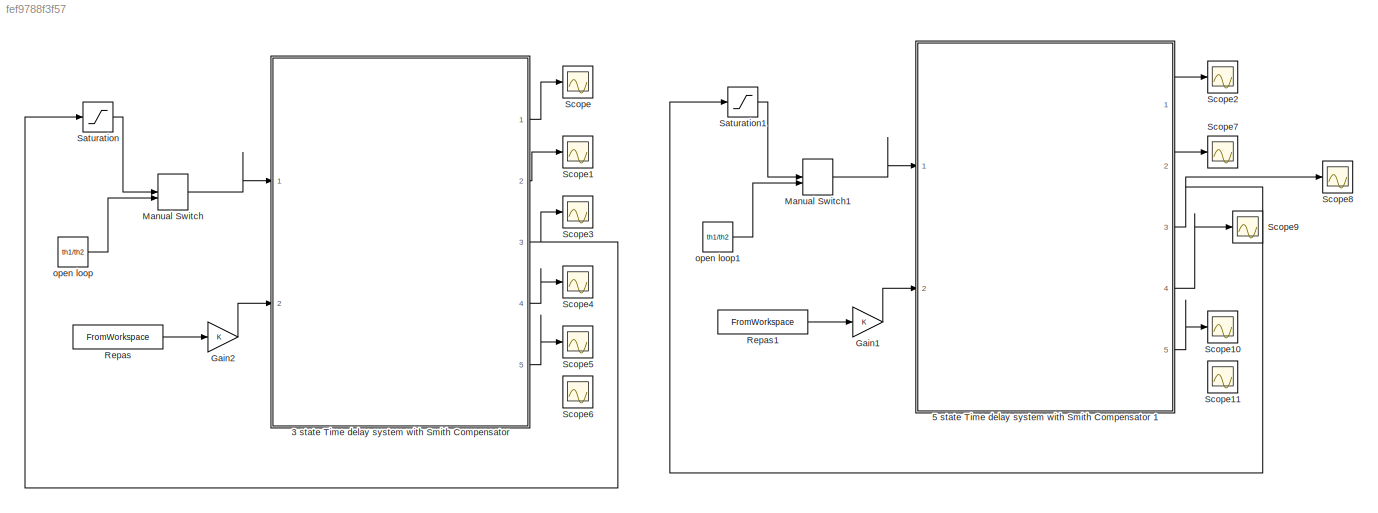
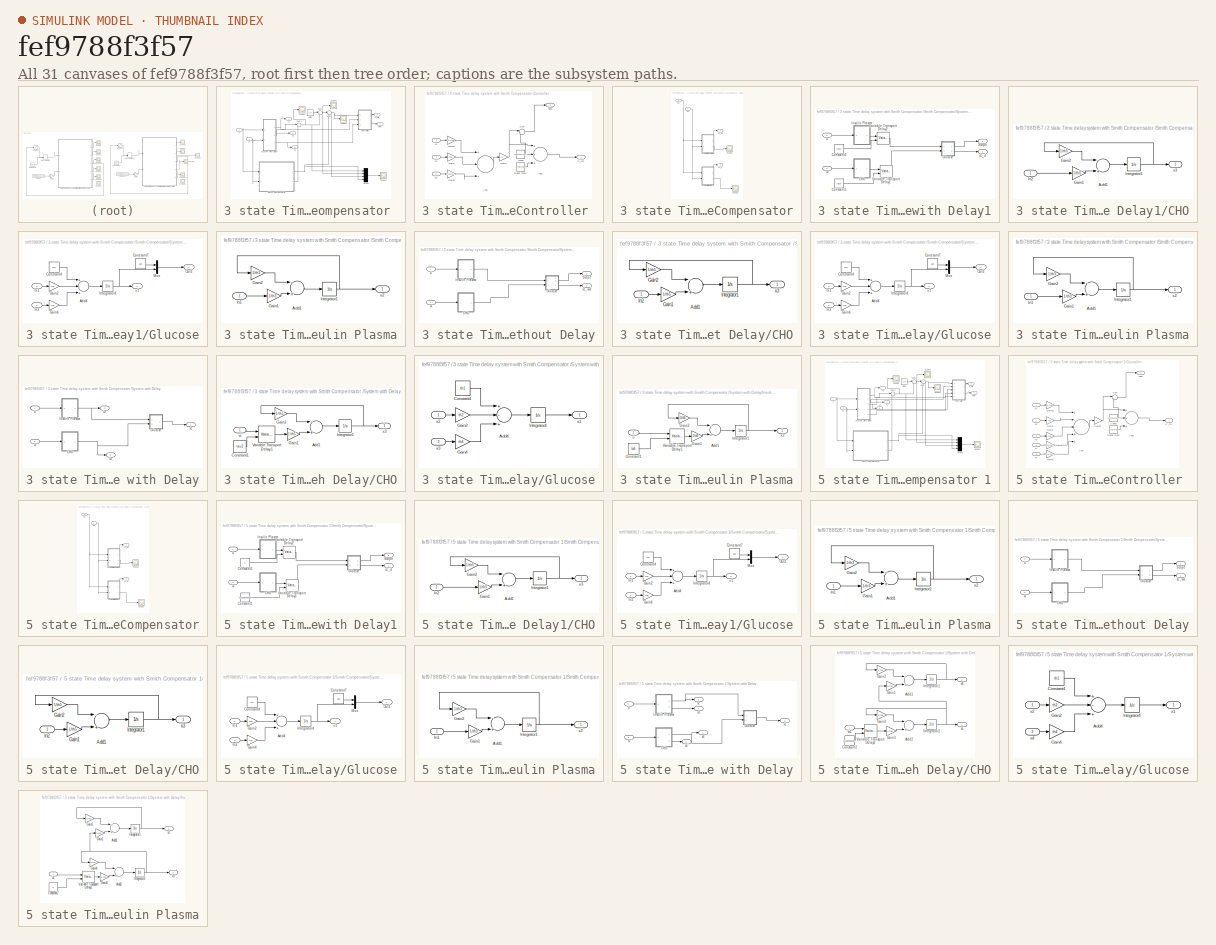
[diagram: thumbnail index - all 31 canvases of the model, root first then tree order]
MODEL slx_fef9788f3f57
KIND model
CONFIG AbsTol = auto
CONFIG EnableMultiTasking = off
CONFIG FixedStep = auto
CONFIG MaxStep = auto
CONFIG MinStep = auto
CONFIG RelTol = 1e-3
CONFIG SampleTimeConstraint = Unconstrained
CONFIG Solver = VariableStepAuto
CONFIG SolverName = VariableStepAuto
CONFIG StartTime = 0.0
CONFIG StopTime = 1500
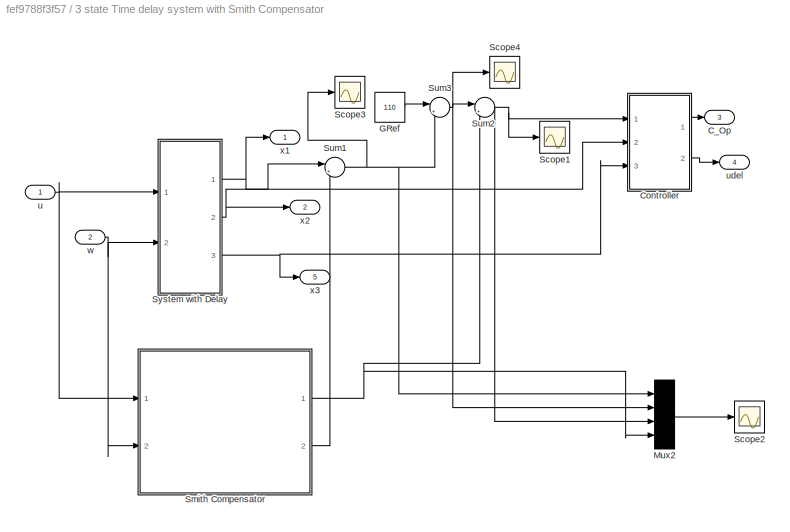
BLOCK [SubSystem] 3 state Time delay system with Smith Compensator 
  Ports = [2, 5]
  RequestExecContextInheritance = off
BLOCK [Outport] 3 state Time delay system with Smith Compensator /C_Op
  IconDisplay = Port number
  Port = 3
BLOCK [SubSystem] 3 state Time delay system with Smith Compensator /Controller 
  Ports = [3, 2]
  RequestExecContextInheritance = off
BLOCK [Sum] 3 state Time delay system with Smith Compensator /Controller /Add
  InputSameDT = off
  Inputs = +-+
  OutDataTypeStr = Inherit: Inherit via internal rule
  Ports = [3, 1]
  SaturateOnIntegerOverflow = off
BLOCK [Sum] 3 state Time delay system with Smith Compensator /Controller /Add1
  InputSameDT = off
  Inputs = +++
  OutDataTypeStr = Inherit: Inherit via internal rule
  Ports = [3, 1]
  SaturateOnIntegerOverflow = off
BLOCK [Constant] 3 state Time delay system with Smith Compensator /Controller /Basal Rate
  Value = th1/th2
  VectorParams1D = off
BLOCK [Outport] 3 state Time delay system with Smith Compensator /Controller /C_OP
  IconDisplay = Port number
BLOCK [Constant] 3 state Time delay system with Smith Compensator /Controller /Const
  Value = th3*th1/(th2)
  VectorParams1D = off
BLOCK [Gain] 3 state Time delay system with Smith Compensator /Controller /Gain1
  Gain = th3
  OutDataTypeStr = Inherit: Inherit via internal rule
  ParamDataTypeStr = Inherit: Inherit via internal rule
  SaturateOnIntegerOverflow = off
BLOCK [Gain] 3 state Time delay system with Smith Compensator /Controller /Gain11
  Gain = -1/(th2)
  OutDataTypeStr = Inherit: Inherit via internal rule
  ParamDataTypeStr = Inherit: Inherit via internal rule
  SaturateOnIntegerOverflow = off
BLOCK [Gain] 3 state Time delay system with Smith Compensator /Controller /Gain2
  Gain = (th4*th5)/th2
  OutDataTypeStr = Inherit: Inherit via internal rule
  ParamDataTypeStr = Inherit: Inherit via internal rule
  SaturateOnIntegerOverflow = off
BLOCK [Gain] 3 state Time delay system with Smith Compensator /Controller /Gain4
  OutDataTypeStr = Inherit: Inherit via internal rule
  ParamDataTypeStr = Inherit: Inherit via internal rule
  SaturateOnIntegerOverflow = off
BLOCK [Sum] 3 state Time delay system with Smith Compensator /Controller /Sum
  IconShape = round
  InputSameDT = off
  Inputs = |++
  OutDataTypeStr = Inherit: Inherit via internal rule
  Ports = [2, 1]
  SaturateOnIntegerOverflow = off
BLOCK [Outport] 3 state Time delay system with Smith Compensator /Controller /udel
  IconDisplay = Port number
  Port = 2
BLOCK [Inport] 3 state Time delay system with Smith Compensator /Controller /x1
  IconDisplay = Port number
BLOCK [Inport] 3 state Time delay system with Smith Compensator /Controller /x2
  IconDisplay = Port number
  Port = 2
BLOCK [Inport] 3 state Time delay system with Smith Compensator /Controller /x3
  IconDisplay = Port number
  Port = 3
BLOCK [Constant] 3 state Time delay system with Smith Compensator /GRef
  Value = 110
BLOCK [Mux] 3 state Time delay system with Smith Compensator /Mux2
  DisplayOption = bar
  Ports = [4, 1]
BLOCK [Scope] 3 state Time delay system with Smith Compensator /Scope1
  Floating = off
  NumInputPorts = 1
  Ports = [1]
  ScopeSpecificationString = Simulink.scopes.TimeScopeBlockCfg('CurrentConfiguration', extmgr.ConfigurationSet(extmgr.Configuration('Core','General UI',true),extmgr.Configuration('Core','Source UI',true),extmgr.Configuration('Sources','WiredSimulink',true,'DataLoggingVariableName','ScopeData9'),extmgr.Configuration('Visuals','Time Domain',true,'SerializedDisplays',{struct('MinYLimReal','-157.20451','MaxYLimReal','27.49903','Y...<+1536ch>
BLOCK [Scope] 3 state Time delay system with Smith Compensator /Scope2
  Floating = off
  NumInputPorts = 1
  Ports = [1]
  ScopeSpecificationString = Simulink.scopes.TimeScopeBlockCfg('CurrentConfiguration', extmgr.ConfigurationSet(extmgr.Configuration('Core','General UI',true),extmgr.Configuration('Core','Source UI',true),extmgr.Configuration('Sources','WiredSimulink',true,'DataLoggingVariableName','ScopeData10'),extmgr.Configuration('Visuals','Time Domain',true,'SerializedDisplays',{struct('MinYLimReal','-481.17556','MaxYLimReal','591.25535',...<+1575ch>
BLOCK [Scope] 3 state Time delay system with Smith Compensator /Scope3
  Floating = off
  NumInputPorts = 1
  Ports = [1]
  ScopeSpecificationString = Simulink.scopes.TimeScopeBlockCfg('CurrentConfiguration', extmgr.ConfigurationSet(extmgr.Configuration('Core','General UI',true),extmgr.Configuration('Core','Source UI',true),extmgr.Configuration('Sources','WiredSimulink',true,'DataLoggingVariableName','ScopeData1'),extmgr.Configuration('Visuals','Time Domain',true,'SerializedDisplays',{struct('MinYLimReal','-10.40156','MaxYLimReal','2.74443','YLa...<+1528ch>
BLOCK [Scope] 3 state Time delay system with Smith Compensator /Scope4
  Floating = off
  NumInputPorts = 1
  Ports = [1]
  ScopeSpecificationString = Simulink.scopes.TimeScopeBlockCfg('CurrentConfiguration', extmgr.ConfigurationSet(extmgr.Configuration('Core','General UI',true),extmgr.Configuration('Core','Source UI',true),extmgr.Configuration('Sources','WiredSimulink',true,'DataLoggingVariableName','ScopeData2'),extmgr.Configuration('Visuals','Time Domain',true,'SerializedDisplays',{struct('MinYLimReal','107.25557','MaxYLimReal','120.40156','Y...<+1538ch>
BLOCK [SubSystem] 3 state Time delay system with Smith Compensator /Smith Compensator
  Ports = [2, 2]
  RequestExecContextInheritance = off
BLOCK [Inport] 3 state Time delay system with Smith Compensator /Smith Compensator/In1
  IconDisplay = Port number
BLOCK [Inport] 3 state Time delay system with Smith Compensator /Smith Compensator/In2
  IconDisplay = Port number
  Port = 2
BLOCK [Scope] 3 state Time delay system with Smith Compensator /Smith Compensator/Scope1
  Floating = off
  NumInputPorts = 1
  Ports = [1]
  ScopeSpecificationString = Simulink.scopes.TimeScopeBlockCfg('CurrentConfiguration', extmgr.ConfigurationSet(extmgr.Configuration('Core','General UI',true),extmgr.Configuration('Core','Source UI',true),extmgr.Configuration('Sources','WiredSimulink',true,'DataLoggingVariableName','ScopeData2'),extmgr.Configuration('Visuals','Time Domain',true,'SerializedDisplays',{struct('MinYLimReal','42.62347','MaxYLimReal','716.38879','YL...<+1442ch>
BLOCK [Scope] 3 state Time delay system with Smith Compensator /Smith Compensator/Scope2
  Floating = off
  NumInputPorts = 1
  Ports = [1]
  ScopeSpecificationString = Simulink.scopes.TimeScopeBlockCfg('CurrentConfiguration', extmgr.ConfigurationSet(extmgr.Configuration('Core','General UI',true),extmgr.Configuration('Core','Source UI',true),extmgr.Configuration('Sources','WiredSimulink',true,'DataLoggingVariableName','ScopeData3'),extmgr.Configuration('Visuals','Time Domain',true,'SerializedDisplays',{struct('MinYLimReal','42.62347','MaxYLimReal','716.38879','YL...<+1442ch>
BLOCK [SubSystem] 3 state Time delay system with Smith Compensator /Smith Compensator/System with Delay1
  Ports = [2, 2]
  RequestExecContextInheritance = off
BLOCK [SubSystem] 3 state Time delay system with Smith Compensator /Smith Compensator/System with Delay1/CHO
  Ports = [1, 1]
  RequestExecContextInheritance = off
BLOCK [Sum] 3 state Time delay system with Smith Compensator /Smith Compensator/System with Delay1/CHO/Add1
  InputSameDT = off
  Inputs = -+
  OutDataTypeStr = Inherit: Inherit via internal rule
  Ports = [2, 1]
  SaturateOnIntegerOverflow = off
BLOCK [Gain] 3 state Time delay system with Smith Compensator /Smith Compensator/System with Delay1/CHO/Gain1
  Gain = 1/th5
  OutDataTypeStr = Inherit: Inherit via internal rule
  ParamDataTypeStr = Inherit: Inherit via internal rule
  SaturateOnIntegerOverflow = off
BLOCK [Gain] 3 state Time delay system with Smith Compensator /Smith Compensator/System with Delay1/CHO/Gain2
  Gain = 1/th5
  OutDataTypeStr = Inherit: Inherit via internal rule
  ParamDataTypeStr = Inherit: Inherit via internal rule
  SaturateOnIntegerOverflow = off
BLOCK [Inport] 3 state Time delay system with Smith Compensator /Smith Compensator/System with Delay1/CHO/In2
  IconDisplay = Port number
BLOCK [Integrator] 3 state Time delay system with Smith Compensator /Smith Compensator/System with Delay1/CHO/Integrator1
  Ports = [1, 1]
  ZeroCross = off
BLOCK [Outport] 3 state Time delay system with Smith Compensator /Smith Compensator/System with Delay1/CHO/x3
  IconDisplay = Port number
BLOCK [Constant] 3 state Time delay system with Smith Compensator /Smith Compensator/System with Delay1/Constant1
  Value = tau2
BLOCK [Constant] 3 state Time delay system with Smith Compensator /Smith Compensator/System with Delay1/Constant5
  Value = tau1
BLOCK [SubSystem] 3 state Time delay system with Smith Compensator /Smith Compensator/System with Delay1/Glucose
  Ports = [2, 2]
  RequestExecContextInheritance = off
BLOCK [Sum] 3 state Time delay system with Smith Compensator /Smith Compensator/System with Delay1/Glucose/Add4
  InputSameDT = off
  Inputs = +-+
  OutDataTypeStr = Inherit: Inherit via internal rule
  Ports = [3, 1]
  SaturateOnIntegerOverflow = off
BLOCK [Constant] 3 state Time delay system with Smith Compensator /Smith Compensator/System with Delay1/Glucose/Constant4
  Value = th1
  VectorParams1D = off
BLOCK [Constant] 3 state Time delay system with Smith Compensator /Smith Compensator/System with Delay1/Glucose/Constant7
  Value = 110
  VectorParams1D = off
BLOCK [Gain] 3 state Time delay system with Smith Compensator /Smith Compensator/System with Delay1/Glucose/Gain2
  Gain = th2
  OutDataTypeStr = Inherit: Inherit via internal rule
  ParamDataTypeStr = Inherit: Inherit via internal rule
  SaturateOnIntegerOverflow = off
BLOCK [Gain] 3 state Time delay system with Smith Compensator /Smith Compensator/System with Delay1/Glucose/Gain4
  Gain = th4
  OutDataTypeStr = Inherit: Inherit via internal rule
  ParamDataTypeStr = Inherit: Inherit via internal rule
  SaturateOnIntegerOverflow = off
BLOCK [Inport] 3 state Time delay system with Smith Compensator /Smith Compensator/System with Delay1/Glucose/In1
  IconDisplay = Port number
BLOCK [Inport] 3 state Time delay system with Smith Compensator /Smith Compensator/System with Delay1/Glucose/In2
  IconDisplay = Port number
  Port = 2
BLOCK [Integrator] 3 state Time delay system with Smith Compensator /Smith Compensator/System with Delay1/Glucose/Integrator4
  InitialCondition = 110
  Ports = [1, 1]
  ZeroCross = off
BLOCK [Mux] 3 state Time delay system with Smith Compensator /Smith Compensator/System with Delay1/Glucose/Mux
  DisplayOption = bar
  Inputs = 2
  Ports = [2, 1]
BLOCK [Outport] 3 state Time delay system with Smith Compensator /Smith Compensator/System with Delay1/Glucose/Out1
  IconDisplay = Port number
BLOCK [Outport] 3 state Time delay system with Smith Compensator /Smith Compensator/System with Delay1/Glucose/x1
  IconDisplay = Port number
  Port = 2
BLOCK [SubSystem] 3 state Time delay system with Smith Compensator /Smith Compensator/System with Delay1/Insulin Plasma
  Ports = [1, 1]
  RequestExecContextInheritance = off
BLOCK [Sum] 3 state Time delay system with Smith Compensator /Smith Compensator/System with Delay1/Insulin Plasma/Add1
  InputSameDT = off
  Inputs = -+
  OutDataTypeStr = Inherit: Inherit via internal rule
  Ports = [2, 1]
  SaturateOnIntegerOverflow = off
BLOCK [Gain] 3 state Time delay system with Smith Compensator /Smith Compensator/System with Delay1/Insulin Plasma/Gain1
  Gain = 1/th3
  OutDataTypeStr = Inherit: Inherit via internal rule
  ParamDataTypeStr = Inherit: Inherit via internal rule
  SaturateOnIntegerOverflow = off
BLOCK [Gain] 3 state Time delay system with Smith Compensator /Smith Compensator/System with Delay1/Insulin Plasma/Gain2
  Gain = 1/th3
  OutDataTypeStr = Inherit: Inherit via internal rule
  ParamDataTypeStr = Inherit: Inherit via internal rule
  SaturateOnIntegerOverflow = off
BLOCK [Inport] 3 state Time delay system with Smith Compensator /Smith Compensator/System with Delay1/Insulin Plasma/In1
  IconDisplay = Port number
BLOCK [Integrator] 3 state Time delay system with Smith Compensator /Smith Compensator/System with Delay1/Insulin Plasma/Integrator1
  InitialCondition = th1/th2
  Ports = [1, 1]
  ZeroCross = off
BLOCK [Outport] 3 state Time delay system with Smith Compensator /Smith Compensator/System with Delay1/Insulin Plasma/x2
  IconDisplay = Port number
BLOCK [Outport] 3 state Time delay system with Smith Compensator /Smith Compensator/System with Delay1/Scope
  IconDisplay = Port number
  Port = 2
BLOCK [VariableTransportDelay] 3 state Time delay system with Smith Compensator /Smith Compensator/System with Delay1/Variable Transport Delay1
  MaximumDelay = 30
  Ports = [2, 1]
  VariableDelayType = Variable transport delay
BLOCK [VariableTransportDelay] 3 state Time delay system with Smith Compensator /Smith Compensator/System with Delay1/Variable Transport Delay2
  InitialOutput = th1/th2
  MaximumDelay = 20
  Ports = [2, 1]
  VariableDelayType = Variable transport delay
BLOCK [Inport] 3 state Time delay system with Smith Compensator /Smith Compensator/System with Delay1/u
  IconDisplay = Port number
BLOCK [Inport] 3 state Time delay system with Smith Compensator /Smith Compensator/System with Delay1/w
  IconDisplay = Port number
  Port = 2
BLOCK [Outport] 3 state Time delay system with Smith Compensator /Smith Compensator/System with Delay1/x1_d
  IconDisplay = Port number
BLOCK [SubSystem] 3 state Time delay system with Smith Compensator /Smith Compensator/System without Delay
  Ports = [2, 2]
  RequestExecContextInheritance = off
BLOCK [SubSystem] 3 state Time delay system with Smith Compensator /Smith Compensator/System without Delay/CHO
  Ports = [1, 1]
  RequestExecContextInheritance = off
BLOCK [Sum] 3 state Time delay system with Smith Compensator /Smith Compensator/System without Delay/CHO/Add1
  InputSameDT = off
  Inputs = -+
  OutDataTypeStr = Inherit: Inherit via internal rule
  Ports = [2, 1]
  SaturateOnIntegerOverflow = off
BLOCK [Gain] 3 state Time delay system with Smith Compensator /Smith Compensator/System without Delay/CHO/Gain1
  Gain = 1/th5
  OutDataTypeStr = Inherit: Inherit via internal rule
  ParamDataTypeStr = Inherit: Inherit via internal rule
  SaturateOnIntegerOverflow = off
BLOCK [Gain] 3 state Time delay system with Smith Compensator /Smith Compensator/System without Delay/CHO/Gain2
  Gain = 1/th5
  OutDataTypeStr = Inherit: Inherit via internal rule
  ParamDataTypeStr = Inherit: Inherit via internal rule
  SaturateOnIntegerOverflow = off
BLOCK [Inport] 3 state Time delay system with Smith Compensator /Smith Compensator/System without Delay/CHO/In2
  IconDisplay = Port number
BLOCK [Integrator] 3 state Time delay system with Smith Compensator /Smith Compensator/System without Delay/CHO/Integrator1
  Ports = [1, 1]
  ZeroCross = off
BLOCK [Outport] 3 state Time delay system with Smith Compensator /Smith Compensator/System without Delay/CHO/x3
  IconDisplay = Port number
BLOCK [SubSystem] 3 state Time delay system with Smith Compensator /Smith Compensator/System without Delay/Glucose
  Ports = [2, 2]
  RequestExecContextInheritance = off
BLOCK [Sum] 3 state Time delay system with Smith Compensator /Smith Compensator/System without Delay/Glucose/Add4
  InputSameDT = off
  Inputs = +-+
  OutDataTypeStr = Inherit: Inherit via internal rule
  Ports = [3, 1]
  SaturateOnIntegerOverflow = off
BLOCK [Constant] 3 state Time delay system with Smith Compensator /Smith Compensator/System without Delay/Glucose/Constant4
  Value = th1
  VectorParams1D = off
BLOCK [Constant] 3 state Time delay system with Smith Compensator /Smith Compensator/System without Delay/Glucose/Constant7
  Value = 110
  VectorParams1D = off
BLOCK [Gain] 3 state Time delay system with Smith Compensator /Smith Compensator/System without Delay/Glucose/Gain2
  Gain = th2
  OutDataTypeStr = Inherit: Inherit via internal rule
  ParamDataTypeStr = Inherit: Inherit via internal rule
  SaturateOnIntegerOverflow = off
BLOCK [Gain] 3 state Time delay system with Smith Compensator /Smith Compensator/System without Delay/Glucose/Gain4
  Gain = th4
  OutDataTypeStr = Inherit: Inherit via internal rule
  ParamDataTypeStr = Inherit: Inherit via internal rule
  SaturateOnIntegerOverflow = off
BLOCK [Inport] 3 state Time delay system with Smith Compensator /Smith Compensator/System without Delay/Glucose/In1
  IconDisplay = Port number
BLOCK [Inport] 3 state Time delay system with Smith Compensator /Smith Compensator/System without Delay/Glucose/In2
  IconDisplay = Port number
  Port = 2
BLOCK [Integrator] 3 state Time delay system with Smith Compensator /Smith Compensator/System without Delay/Glucose/Integrator4
  InitialCondition = 110
  Ports = [1, 1]
  ZeroCross = off
BLOCK [Mux] 3 state Time delay system with Smith Compensator /Smith Compensator/System without Delay/Glucose/Mux
  DisplayOption = bar
  Inputs = 2
  Ports = [2, 1]
BLOCK [Outport] 3 state Time delay system with Smith Compensator /Smith Compensator/System without Delay/Glucose/Out1
  IconDisplay = Port number
BLOCK [Outport] 3 state Time delay system with Smith Compensator /Smith Compensator/System without Delay/Glucose/x1
  IconDisplay = Port number
  Port = 2
BLOCK [SubSystem] 3 state Time delay system with Smith Compensator /Smith Compensator/System without Delay/Insulin Plasma
  Ports = [1, 1]
  RequestExecContextInheritance = off
BLOCK [Sum] 3 state Time delay system with Smith Compensator /Smith Compensator/System without Delay/Insulin Plasma/Add1
  InputSameDT = off
  Inputs = -+
  OutDataTypeStr = Inherit: Inherit via internal rule
  Ports = [2, 1]
  SaturateOnIntegerOverflow = off
BLOCK [Gain] 3 state Time delay system with Smith Compensator /Smith Compensator/System without Delay/Insulin Plasma/Gain1
  Gain = 1/th3
  OutDataTypeStr = Inherit: Inherit via internal rule
  ParamDataTypeStr = Inherit: Inherit via internal rule
  SaturateOnIntegerOverflow = off
BLOCK [Gain] 3 state Time delay system with Smith Compensator /Smith Compensator/System without Delay/Insulin Plasma/Gain2
  Gain = 1/th3
  OutDataTypeStr = Inherit: Inherit via internal rule
  ParamDataTypeStr = Inherit: Inherit via internal rule
  SaturateOnIntegerOverflow = off
BLOCK [Inport] 3 state Time delay system with Smith Compensator /Smith Compensator/System without Delay/Insulin Plasma/In1
  IconDisplay = Port number
BLOCK [Integrator] 3 state Time delay system with Smith Compensator /Smith Compensator/System without Delay/Insulin Plasma/Integrator1
  InitialCondition = th1/th2
  Ports = [1, 1]
  ZeroCross = off
BLOCK [Outport] 3 state Time delay system with Smith Compensator /Smith Compensator/System without Delay/Insulin Plasma/x2
  IconDisplay = Port number
BLOCK [Outport] 3 state Time delay system with Smith Compensator /Smith Compensator/System without Delay/Scope
  IconDisplay = Port number
  Port = 2
BLOCK [Inport] 3 state Time delay system with Smith Compensator /Smith Compensator/System without Delay/u
  IconDisplay = Port number
BLOCK [Inport] 3 state Time delay system with Smith Compensator /Smith Compensator/System without Delay/w
  IconDisplay = Port number
  Port = 2
BLOCK [Outport] 3 state Time delay system with Smith Compensator /Smith Compensator/System without Delay/x1_wd
  IconDisplay = Port number
BLOCK [Outport] 3 state Time delay system with Smith Compensator /Smith Compensator/x1_d
  IconDisplay = Port number
  Port = 2
BLOCK [Outport] 3 state Time delay system with Smith Compensator /Smith Compensator/x1_wd
  IconDisplay = Port number
BLOCK [Sum] 3 state Time delay system with Smith Compensator /Sum1
  IconShape = round
  InputSameDT = off
  Inputs = |+-
  OutDataTypeStr = Inherit: Inherit via internal rule
  Ports = [2, 1]
  SaturateOnIntegerOverflow = off
BLOCK [Sum] 3 state Time delay system with Smith Compensator /Sum2
  IconShape = round
  InputSameDT = off
  Inputs = |+-
  OutDataTypeStr = Inherit: Inherit via internal rule
  Ports = [2, 1]
  SaturateOnIntegerOverflow = off
BLOCK [Sum] 3 state Time delay system with Smith Compensator /Sum3
  IconShape = round
  InputSameDT = off
  Inputs = |+-
  OutDataTypeStr = Inherit: Inherit via internal rule
  Ports = [2, 1]
  SaturateOnIntegerOverflow = off
BLOCK [SubSystem] 3 state Time delay system with Smith Compensator /System with Delay
  Ports = [2, 3]
  RequestExecContextInheritance = off
BLOCK [SubSystem] 3 state Time delay system with Smith Compensator /System with Delay/CHO
  Ports = [1, 1]
  RequestExecContextInheritance = off
BLOCK [Sum] 3 state Time delay system with Smith Compensator /System with Delay/CHO/Add1
  InputSameDT = off
  Inputs = -+
  OutDataTypeStr = Inherit: Inherit via internal rule
  Ports = [2, 1]
  SaturateOnIntegerOverflow = off
BLOCK [Constant] 3 state Time delay system with Smith Compensator /System with Delay/CHO/Constant1
  Value = tau2
  VectorParams1D = off
BLOCK [Gain] 3 state Time delay system with Smith Compensator /System with Delay/CHO/Gain1
  Gain = 1/th5
  OutDataTypeStr = Inherit: Inherit via internal rule
  ParamDataTypeStr = Inherit: Inherit via internal rule
  SaturateOnIntegerOverflow = off
BLOCK [Gain] 3 state Time delay system with Smith Compensator /System with Delay/CHO/Gain2
  Gain = 1/th5
  OutDataTypeStr = Inherit: Inherit via internal rule
  ParamDataTypeStr = Inherit: Inherit via internal rule
  SaturateOnIntegerOverflow = off
BLOCK [Integrator] 3 state Time delay system with Smith Compensator /System with Delay/CHO/Integrator1
  Ports = [1, 1]
  ZeroCross = off
BLOCK [VariableTransportDelay] 3 state Time delay system with Smith Compensator /System with Delay/CHO/Variable Transport Delay1
  MaximumDelay = 35
  Ports = [2, 1]
  VariableDelayType = Variable transport delay
BLOCK [Inport] 3 state Time delay system with Smith Compensator /System with Delay/CHO/w
  IconDisplay = Port number
BLOCK [Outport] 3 state Time delay system with Smith Compensator /System with Delay/CHO/x3
  IconDisplay = Port number
BLOCK [SubSystem] 3 state Time delay system with Smith Compensator /System with Delay/Glucose
  Ports = [2, 1]
  RequestExecContextInheritance = off
BLOCK [Sum] 3 state Time delay system with Smith Compensator /System with Delay/Glucose/Add4
  InputSameDT = off
  Inputs = +-+
  OutDataTypeStr = Inherit: Inherit via internal rule
  Ports = [3, 1]
  SaturateOnIntegerOverflow = off
BLOCK [Constant] 3 state Time delay system with Smith Compensator /System with Delay/Glucose/Constant4
  Value = th1
  VectorParams1D = off
BLOCK [Gain] 3 state Time delay system with Smith Compensator /System with Delay/Glucose/Gain2
  Gain = th2
  OutDataTypeStr = Inherit: Inherit via internal rule
  ParamDataTypeStr = Inherit: Inherit via internal rule
  SaturateOnIntegerOverflow = off
BLOCK [Gain] 3 state Time delay system with Smith Compensator /System with Delay/Glucose/Gain4
  Gain = th4
  OutDataTypeStr = Inherit: Inherit via internal rule
  ParamDataTypeStr = Inherit: Inherit via internal rule
  SaturateOnIntegerOverflow = off
BLOCK [Integrator] 3 state Time delay system with Smith Compensator /System with Delay/Glucose/Integrator4
  InitialCondition = 110
  Ports = [1, 1]
  ZeroCross = off
BLOCK [Outport] 3 state Time delay system with Smith Compensator /System with Delay/Glucose/x1
  IconDisplay = Port number
BLOCK [Inport] 3 state Time delay system with Smith Compensator /System with Delay/Glucose/x2
  IconDisplay = Port number
BLOCK [Inport] 3 state Time delay system with Smith Compensator /System with Delay/Glucose/x3
  IconDisplay = Port number
  Port = 2
BLOCK [SubSystem] 3 state Time delay system with Smith Compensator /System with Delay/Insulin Plasma
  Ports = [1, 1]
  RequestExecContextInheritance = off
BLOCK [Sum] 3 state Time delay system with Smith Compensator /System with Delay/Insulin Plasma/Add1
  InputSameDT = off
  Inputs = -+
  OutDataTypeStr = Inherit: Inherit via internal rule
  Ports = [2, 1]
  SaturateOnIntegerOverflow = off
BLOCK [Constant] 3 state Time delay system with Smith Compensator /System with Delay/Insulin Plasma/Constant1
  Value = tau1
BLOCK [Gain] 3 state Time delay system with Smith Compensator /System with Delay/Insulin Plasma/Gain1
  Gain = 1/th3
  OutDataTypeStr = Inherit: Inherit via internal rule
  ParamDataTypeStr = Inherit: Inherit via internal rule
  SaturateOnIntegerOverflow = off
BLOCK [Gain] 3 state Time delay system with Smith Compensator /System with Delay/Insulin Plasma/Gain2
  Gain = 1/th3
  OutDataTypeStr = Inherit: Inherit via internal rule
  ParamDataTypeStr = Inherit: Inherit via internal rule
  SaturateOnIntegerOverflow = off
BLOCK [Integrator] 3 state Time delay system with Smith Compensator /System with Delay/Insulin Plasma/Integrator1
  InitialCondition = th1/th2
  Ports = [1, 1]
  ZeroCross = off
BLOCK [VariableTransportDelay] 3 state Time delay system with Smith Compensator /System with Delay/Insulin Plasma/Variable Transport Delay1
  InitialOutput = th1/th2
  MaximumDelay = 20
  Ports = [2, 1]
  VariableDelayType = Variable transport delay
BLOCK [Inport] 3 state Time delay system with Smith Compensator /System with Delay/Insulin Plasma/u
  IconDisplay = Port number
BLOCK [Outport] 3 state Time delay system with Smith Compensator /System with Delay/Insulin Plasma/x2
  IconDisplay = Port number
BLOCK [Inport] 3 state Time delay system with Smith Compensator /System with Delay/u
  IconDisplay = Port number
BLOCK [Inport] 3 state Time delay system with Smith Compensator /System with Delay/w
  IconDisplay = Port number
  Port = 2
BLOCK [Outport] 3 state Time delay system with Smith Compensator /System with Delay/x1
  IconDisplay = Port number
BLOCK [Outport] 3 state Time delay system with Smith Compensator /System with Delay/x2
  IconDisplay = Port number
  Port = 2
BLOCK [Outport] 3 state Time delay system with Smith Compensator /System with Delay/x3
  IconDisplay = Port number
  Port = 3
BLOCK [Inport] 3 state Time delay system with Smith Compensator /u
  IconDisplay = Port number
BLOCK [Outport] 3 state Time delay system with Smith Compensator /udel
  IconDisplay = Port number
  Port = 4
BLOCK [Inport] 3 state Time delay system with Smith Compensator /w
  IconDisplay = Port number
  Port = 2
BLOCK [Outport] 3 state Time delay system with Smith Compensator /x1
  IconDisplay = Port number
BLOCK [Outport] 3 state Time delay system with Smith Compensator /x2
  IconDisplay = Port number
  Port = 2
BLOCK [Outport] 3 state Time delay system with Smith Compensator /x3
  IconDisplay = Port number
  Port = 5
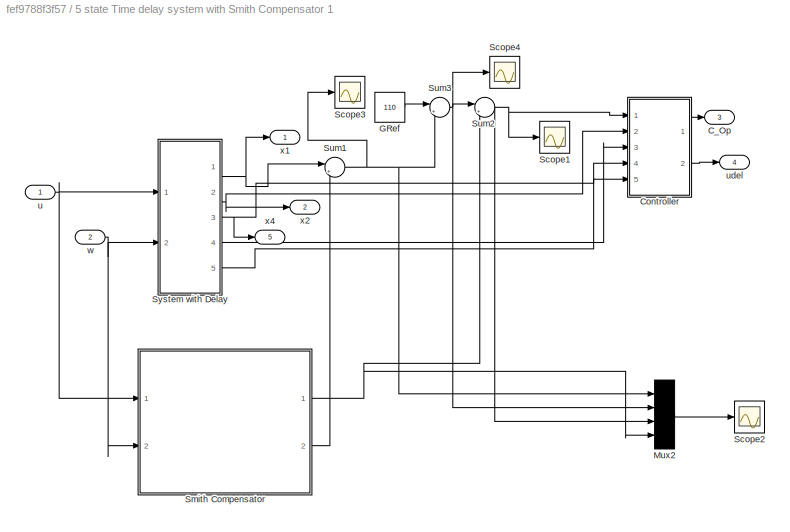
BLOCK [SubSystem] 5 state Time delay system with Smith Compensator 1
  Ports = [2, 5]
  RequestExecContextInheritance = off
BLOCK [Outport] 5 state Time delay system with Smith Compensator 1/C_Op
  IconDisplay = Port number
  Port = 3
BLOCK [SubSystem] 5 state Time delay system with Smith Compensator 1/Controller 
  Ports = [5, 2]
  RequestExecContextInheritance = off
BLOCK [Sum] 5 state Time delay system with Smith Compensator 1/Controller /Add
  InputSameDT = off
  Inputs = +--++
  OutDataTypeStr = Inherit: Inherit via internal rule
  Ports = [5, 1]
  SaturateOnIntegerOverflow = off
BLOCK [Sum] 5 state Time delay system with Smith Compensator 1/Controller /Add1
  InputSameDT = off
  Inputs = +++
  OutDataTypeStr = Inherit: Inherit via internal rule
  Ports = [3, 1]
  SaturateOnIntegerOverflow = off
BLOCK [Constant] 5 state Time delay system with Smith Compensator 1/Controller /Basal Rate
  Value = th1/th2
  VectorParams1D = off
BLOCK [Outport] 5 state Time delay system with Smith Compensator 1/Controller /C_OP
  IconDisplay = Port number
BLOCK [Constant] 5 state Time delay system with Smith Compensator 1/Controller /Const
  Value = (2*th3*th1)/(th2)
  VectorParams1D = off
BLOCK [Gain] 5 state Time delay system with Smith Compensator 1/Controller /Gain1
  Gain = th3
  OutDataTypeStr = Inherit: Inherit via internal rule
  ParamDataTypeStr = Inherit: Inherit via internal rule
  SaturateOnIntegerOverflow = off
BLOCK [Gain] 5 state Time delay system with Smith Compensator 1/Controller /Gain11
  Gain = -1/(th2)
  OutDataTypeStr = Inherit: Inherit via internal rule
  ParamDataTypeStr = Inherit: Inherit via internal rule
  SaturateOnIntegerOverflow = off
BLOCK [Gain] 5 state Time delay system with Smith Compensator 1/Controller /Gain2
  Gain = th3
  OutDataTypeStr = Inherit: Inherit via internal rule
  ParamDataTypeStr = Inherit: Inherit via internal rule
  SaturateOnIntegerOverflow = off
BLOCK [Gain] 5 state Time delay system with Smith Compensator 1/Controller /Gain3
  Gain = (th4*th5)/th2
  OutDataTypeStr = Inherit: Inherit via internal rule
  ParamDataTypeStr = Inherit: Inherit via internal rule
  SaturateOnIntegerOverflow = off
BLOCK [Gain] 5 state Time delay system with Smith Compensator 1/Controller /Gain4
  OutDataTypeStr = Inherit: Inherit via internal rule
  ParamDataTypeStr = Inherit: Inherit via internal rule
  SaturateOnIntegerOverflow = off
BLOCK [Gain] 5 state Time delay system with Smith Compensator 1/Controller /Gain5
  Gain = (th4*th5)/th2
  OutDataTypeStr = Inherit: Inherit via internal rule
  ParamDataTypeStr = Inherit: Inherit via internal rule
  SaturateOnIntegerOverflow = off
BLOCK [Sum] 5 state Time delay system with Smith Compensator 1/Controller /Sum
  IconShape = round
  InputSameDT = off
  Inputs = |++
  OutDataTypeStr = Inherit: Inherit via internal rule
  Ports = [2, 1]
  SaturateOnIntegerOverflow = off
BLOCK [Outport] 5 state Time delay system with Smith Compensator 1/Controller /udel
  IconDisplay = Port number
  Port = 2
BLOCK [Inport] 5 state Time delay system with Smith Compensator 1/Controller /x1
  IconDisplay = Port number
BLOCK [Inport] 5 state Time delay system with Smith Compensator 1/Controller /x2
  IconDisplay = Port number
  Port = 2
BLOCK [Inport] 5 state Time delay system with Smith Compensator 1/Controller /x3
  IconDisplay = Port number
  Port = 3
BLOCK [Inport] 5 state Time delay system with Smith Compensator 1/Controller /x4
  IconDisplay = Port number
  Port = 4
BLOCK [Inport] 5 state Time delay system with Smith Compensator 1/Controller /x5
  IconDisplay = Port number
  Port = 5
BLOCK [Constant] 5 state Time delay system with Smith Compensator 1/GRef
  Value = 110
BLOCK [Mux] 5 state Time delay system with Smith Compensator 1/Mux2
  DisplayOption = bar
  Ports = [4, 1]
BLOCK [Scope] 5 state Time delay system with Smith Compensator 1/Scope1
  Floating = off
  NumInputPorts = 1
  Ports = [1]
  ScopeSpecificationString = Simulink.scopes.TimeScopeBlockCfg('CurrentConfiguration', extmgr.ConfigurationSet(extmgr.Configuration('Core','General UI',true),extmgr.Configuration('Core','Source UI',true),extmgr.Configuration('Sources','WiredSimulink',true,'DataLoggingVariableName','ScopeData9'),extmgr.Configuration('Visuals','Time Domain',true,'SerializedDisplays',{struct('MinYLimReal','-157.20451','MaxYLimReal','27.49903','Y...<+1536ch>
BLOCK [Scope] 5 state Time delay system with Smith Compensator 1/Scope2
  Floating = off
  NumInputPorts = 1
  Ports = [1]
  ScopeSpecificationString = Simulink.scopes.TimeScopeBlockCfg('CurrentConfiguration', extmgr.ConfigurationSet(extmgr.Configuration('Core','General UI',true),extmgr.Configuration('Core','Source UI',true),extmgr.Configuration('Sources','WiredSimulink',true,'DataLoggingVariableName','ScopeData10'),extmgr.Configuration('Visuals','Time Domain',true,'SerializedDisplays',{struct('MinYLimReal','-481.17556','MaxYLimReal','591.25535',...<+1575ch>
BLOCK [Scope] 5 state Time delay system with Smith Compensator 1/Scope3
  Floating = off
  NumInputPorts = 1
  Ports = [1]
  ScopeSpecificationString = Simulink.scopes.TimeScopeBlockCfg('CurrentConfiguration', extmgr.ConfigurationSet(extmgr.Configuration('Core','General UI',true),extmgr.Configuration('Core','Source UI',true),extmgr.Configuration('Sources','WiredSimulink',true,'DataLoggingVariableName','ScopeData1'),extmgr.Configuration('Visuals','Time Domain',true,'SerializedDisplays',{struct('MinYLimReal','-10.40156','MaxYLimReal','2.74443','YLa...<+1528ch>
BLOCK [Scope] 5 state Time delay system with Smith Compensator 1/Scope4
  Floating = off
  NumInputPorts = 1
  Ports = [1]
  ScopeSpecificationString = Simulink.scopes.TimeScopeBlockCfg('CurrentConfiguration', extmgr.ConfigurationSet(extmgr.Configuration('Core','General UI',true),extmgr.Configuration('Core','Source UI',true),extmgr.Configuration('Sources','WiredSimulink',true,'DataLoggingVariableName','ScopeData2'),extmgr.Configuration('Visuals','Time Domain',true,'SerializedDisplays',{struct('MinYLimReal','107.25557','MaxYLimReal','120.40156','Y...<+1538ch>
BLOCK [SubSystem] 5 state Time delay system with Smith Compensator 1/Smith Compensator
  Ports = [2, 2]
  RequestExecContextInheritance = off
BLOCK [Inport] 5 state Time delay system with Smith Compensator 1/Smith Compensator/In1
  IconDisplay = Port number
BLOCK [Inport] 5 state Time delay system with Smith Compensator 1/Smith Compensator/In2
  IconDisplay = Port number
  Port = 2
BLOCK [Scope] 5 state Time delay system with Smith Compensator 1/Smith Compensator/Scope1
  Floating = off
  NumInputPorts = 1
  Ports = [1]
  ScopeSpecificationString = Simulink.scopes.TimeScopeBlockCfg('CurrentConfiguration', extmgr.ConfigurationSet(extmgr.Configuration('Core','General UI',true),extmgr.Configuration('Core','Source UI',true),extmgr.Configuration('Sources','WiredSimulink',true,'DataLoggingVariableName','ScopeData2'),extmgr.Configuration('Visuals','Time Domain',true,'SerializedDisplays',{struct('MinYLimReal','42.62347','MaxYLimReal','716.38879','YL...<+1442ch>
BLOCK [Scope] 5 state Time delay system with Smith Compensator 1/Smith Compensator/Scope2
  Floating = off
  NumInputPorts = 1
  Ports = [1]
  ScopeSpecificationString = Simulink.scopes.TimeScopeBlockCfg('CurrentConfiguration', extmgr.ConfigurationSet(extmgr.Configuration('Core','General UI',true),extmgr.Configuration('Core','Source UI',true),extmgr.Configuration('Sources','WiredSimulink',true,'DataLoggingVariableName','ScopeData3'),extmgr.Configuration('Visuals','Time Domain',true,'SerializedDisplays',{struct('MinYLimReal','42.62347','MaxYLimReal','716.38879','YL...<+1442ch>
BLOCK [SubSystem] 5 state Time delay system with Smith Compensator 1/Smith Compensator/System with Delay1
  Ports = [2, 2]
  RequestExecContextInheritance = off
BLOCK [SubSystem] 5 state Time delay system with Smith Compensator 1/Smith Compensator/System with Delay1/CHO
  Ports = [1, 1]
  RequestExecContextInheritance = off
BLOCK [Sum] 5 state Time delay system with Smith Compensator 1/Smith Compensator/System with Delay1/CHO/Add1
  InputSameDT = off
  Inputs = -+
  OutDataTypeStr = Inherit: Inherit via internal rule
  Ports = [2, 1]
  SaturateOnIntegerOverflow = off
BLOCK [Gain] 5 state Time delay system with Smith Compensator 1/Smith Compensator/System with Delay1/CHO/Gain1
  Gain = 1/th5
  OutDataTypeStr = Inherit: Inherit via internal rule
  ParamDataTypeStr = Inherit: Inherit via internal rule
  SaturateOnIntegerOverflow = off
BLOCK [Gain] 5 state Time delay system with Smith Compensator 1/Smith Compensator/System with Delay1/CHO/Gain2
  Gain = 1/th5
  OutDataTypeStr = Inherit: Inherit via internal rule
  ParamDataTypeStr = Inherit: Inherit via internal rule
  SaturateOnIntegerOverflow = off
BLOCK [Inport] 5 state Time delay system with Smith Compensator 1/Smith Compensator/System with Delay1/CHO/In2
  IconDisplay = Port number
BLOCK [Integrator] 5 state Time delay system with Smith Compensator 1/Smith Compensator/System with Delay1/CHO/Integrator1
  Ports = [1, 1]
  ZeroCross = off
BLOCK [Outport] 5 state Time delay system with Smith Compensator 1/Smith Compensator/System with Delay1/CHO/x3
  IconDisplay = Port number
BLOCK [Constant] 5 state Time delay system with Smith Compensator 1/Smith Compensator/System with Delay1/Constant1
  Value = 0.0000000001
BLOCK [Constant] 5 state Time delay system with Smith Compensator 1/Smith Compensator/System with Delay1/Constant5
  Value = 5
BLOCK [SubSystem] 5 state Time delay system with Smith Compensator 1/Smith Compensator/System with Delay1/Glucose
  Ports = [2, 2]
  RequestExecContextInheritance = off
BLOCK [Sum] 5 state Time delay system with Smith Compensator 1/Smith Compensator/System with Delay1/Glucose/Add4
  InputSameDT = off
  Inputs = +-+
  OutDataTypeStr = Inherit: Inherit via internal rule
  Ports = [3, 1]
  SaturateOnIntegerOverflow = off
BLOCK [Constant] 5 state Time delay system with Smith Compensator 1/Smith Compensator/System with Delay1/Glucose/Constant4
  Value = th1
  VectorParams1D = off
BLOCK [Constant] 5 state Time delay system with Smith Compensator 1/Smith Compensator/System with Delay1/Glucose/Constant7
  Value = 110
  VectorParams1D = off
BLOCK [Gain] 5 state Time delay system with Smith Compensator 1/Smith Compensator/System with Delay1/Glucose/Gain2
  Gain = th2
  OutDataTypeStr = Inherit: Inherit via internal rule
  ParamDataTypeStr = Inherit: Inherit via internal rule
  SaturateOnIntegerOverflow = off
BLOCK [Gain] 5 state Time delay system with Smith Compensator 1/Smith Compensator/System with Delay1/Glucose/Gain4
  Gain = th4
  OutDataTypeStr = Inherit: Inherit via internal rule
  ParamDataTypeStr = Inherit: Inherit via internal rule
  SaturateOnIntegerOverflow = off
BLOCK [Inport] 5 state Time delay system with Smith Compensator 1/Smith Compensator/System with Delay1/Glucose/In1
  IconDisplay = Port number
BLOCK [Inport] 5 state Time delay system with Smith Compensator 1/Smith Compensator/System with Delay1/Glucose/In2
  IconDisplay = Port number
  Port = 2
BLOCK [Integrator] 5 state Time delay system with Smith Compensator 1/Smith Compensator/System with Delay1/Glucose/Integrator4
  InitialCondition = 110
  Ports = [1, 1]
  ZeroCross = off
BLOCK [Mux] 5 state Time delay system with Smith Compensator 1/Smith Compensator/System with Delay1/Glucose/Mux
  DisplayOption = bar
  Inputs = 2
  Ports = [2, 1]
BLOCK [Outport] 5 state Time delay system with Smith Compensator 1/Smith Compensator/System with Delay1/Glucose/Out1
  IconDisplay = Port number
BLOCK [Outport] 5 state Time delay system with Smith Compensator 1/Smith Compensator/System with Delay1/Glucose/x1
  IconDisplay = Port number
  Port = 2
BLOCK [SubSystem] 5 state Time delay system with Smith Compensator 1/Smith Compensator/System with Delay1/Insulin Plasma
  Ports = [1, 1]
  RequestExecContextInheritance = off
BLOCK [Sum] 5 state Time delay system with Smith Compensator 1/Smith Compensator/System with Delay1/Insulin Plasma/Add1
  InputSameDT = off
  Inputs = -+
  OutDataTypeStr = Inherit: Inherit via internal rule
  Ports = [2, 1]
  SaturateOnIntegerOverflow = off
BLOCK [Gain] 5 state Time delay system with Smith Compensator 1/Smith Compensator/System with Delay1/Insulin Plasma/Gain1
  Gain = 1/th3
  OutDataTypeStr = Inherit: Inherit via internal rule
  ParamDataTypeStr = Inherit: Inherit via internal rule
  SaturateOnIntegerOverflow = off
BLOCK [Gain] 5 state Time delay system with Smith Compensator 1/Smith Compensator/System with Delay1/Insulin Plasma/Gain2
  Gain = 1/th3
  OutDataTypeStr = Inherit: Inherit via internal rule
  ParamDataTypeStr = Inherit: Inherit via internal rule
  SaturateOnIntegerOverflow = off
BLOCK [Inport] 5 state Time delay system with Smith Compensator 1/Smith Compensator/System with Delay1/Insulin Plasma/In1
  IconDisplay = Port number
BLOCK [Integrator] 5 state Time delay system with Smith Compensator 1/Smith Compensator/System with Delay1/Insulin Plasma/Integrator1
  InitialCondition = th1/th2
  Ports = [1, 1]
  ZeroCross = off
BLOCK [Outport] 5 state Time delay system with Smith Compensator 1/Smith Compensator/System with Delay1/Insulin Plasma/x2
  IconDisplay = Port number
BLOCK [Outport] 5 state Time delay system with Smith Compensator 1/Smith Compensator/System with Delay1/Scope
  IconDisplay = Port number
  Port = 2
BLOCK [VariableTransportDelay] 5 state Time delay system with Smith Compensator 1/Smith Compensator/System with Delay1/Variable Transport Delay1
  MaximumDelay = 30
  Ports = [2, 1]
  VariableDelayType = Variable transport delay
BLOCK [VariableTransportDelay] 5 state Time delay system with Smith Compensator 1/Smith Compensator/System with Delay1/Variable Transport Delay2
  InitialOutput = th1/th2
  MaximumDelay = 20
  Ports = [2, 1]
  VariableDelayType = Variable transport delay
BLOCK [Inport] 5 state Time delay system with Smith Compensator 1/Smith Compensator/System with Delay1/u
  IconDisplay = Port number
BLOCK [Inport] 5 state Time delay system with Smith Compensator 1/Smith Compensator/System with Delay1/w
  IconDisplay = Port number
  Port = 2
BLOCK [Outport] 5 state Time delay system with Smith Compensator 1/Smith Compensator/System with Delay1/x1_d
  IconDisplay = Port number
BLOCK [SubSystem] 5 state Time delay system with Smith Compensator 1/Smith Compensator/System without Delay
  Ports = [2, 2]
  RequestExecContextInheritance = off
BLOCK [SubSystem] 5 state Time delay system with Smith Compensator 1/Smith Compensator/System without Delay/CHO
  Ports = [1, 1]
  RequestExecContextInheritance = off
BLOCK [Sum] 5 state Time delay system with Smith Compensator 1/Smith Compensator/System without Delay/CHO/Add1
  InputSameDT = off
  Inputs = -+
  OutDataTypeStr = Inherit: Inherit via internal rule
  Ports = [2, 1]
  SaturateOnIntegerOverflow = off
BLOCK [Gain] 5 state Time delay system with Smith Compensator 1/Smith Compensator/System without Delay/CHO/Gain1
  Gain = 1/th5
  OutDataTypeStr = Inherit: Inherit via internal rule
  ParamDataTypeStr = Inherit: Inherit via internal rule
  SaturateOnIntegerOverflow = off
BLOCK [Gain] 5 state Time delay system with Smith Compensator 1/Smith Compensator/System without Delay/CHO/Gain2
  Gain = 1/th5
  OutDataTypeStr = Inherit: Inherit via internal rule
  ParamDataTypeStr = Inherit: Inherit via internal rule
  SaturateOnIntegerOverflow = off
BLOCK [Inport] 5 state Time delay system with Smith Compensator 1/Smith Compensator/System without Delay/CHO/In2
  IconDisplay = Port number
BLOCK [Integrator] 5 state Time delay system with Smith Compensator 1/Smith Compensator/System without Delay/CHO/Integrator1
  Ports = [1, 1]
  ZeroCross = off
BLOCK [Outport] 5 state Time delay system with Smith Compensator 1/Smith Compensator/System without Delay/CHO/x3
  IconDisplay = Port number
BLOCK [SubSystem] 5 state Time delay system with Smith Compensator 1/Smith Compensator/System without Delay/Glucose
  Ports = [2, 2]
  RequestExecContextInheritance = off
BLOCK [Sum] 5 state Time delay system with Smith Compensator 1/Smith Compensator/System without Delay/Glucose/Add4
  InputSameDT = off
  Inputs = +-+
  OutDataTypeStr = Inherit: Inherit via internal rule
  Ports = [3, 1]
  SaturateOnIntegerOverflow = off
BLOCK [Constant] 5 state Time delay system with Smith Compensator 1/Smith Compensator/System without Delay/Glucose/Constant4
  Value = th1
  VectorParams1D = off
BLOCK [Constant] 5 state Time delay system with Smith Compensator 1/Smith Compensator/System without Delay/Glucose/Constant7
  Value = 110
  VectorParams1D = off
BLOCK [Gain] 5 state Time delay system with Smith Compensator 1/Smith Compensator/System without Delay/Glucose/Gain2
  Gain = th2
  OutDataTypeStr = Inherit: Inherit via internal rule
  ParamDataTypeStr = Inherit: Inherit via internal rule
  SaturateOnIntegerOverflow = off
BLOCK [Gain] 5 state Time delay system with Smith Compensator 1/Smith Compensator/System without Delay/Glucose/Gain4
  Gain = th4
  OutDataTypeStr = Inherit: Inherit via internal rule
  ParamDataTypeStr = Inherit: Inherit via internal rule
  SaturateOnIntegerOverflow = off
BLOCK [Inport] 5 state Time delay system with Smith Compensator 1/Smith Compensator/System without Delay/Glucose/In1
  IconDisplay = Port number
BLOCK [Inport] 5 state Time delay system with Smith Compensator 1/Smith Compensator/System without Delay/Glucose/In2
  IconDisplay = Port number
  Port = 2
BLOCK [Integrator] 5 state Time delay system with Smith Compensator 1/Smith Compensator/System without Delay/Glucose/Integrator4
  InitialCondition = 110
  Ports = [1, 1]
  ZeroCross = off
BLOCK [Mux] 5 state Time delay system with Smith Compensator 1/Smith Compensator/System without Delay/Glucose/Mux
  DisplayOption = bar
  Inputs = 2
  Ports = [2, 1]
BLOCK [Outport] 5 state Time delay system with Smith Compensator 1/Smith Compensator/System without Delay/Glucose/Out1
  IconDisplay = Port number
BLOCK [Outport] 5 state Time delay system with Smith Compensator 1/Smith Compensator/System without Delay/Glucose/x1
  IconDisplay = Port number
  Port = 2
BLOCK [SubSystem] 5 state Time delay system with Smith Compensator 1/Smith Compensator/System without Delay/Insulin Plasma
  Ports = [1, 1]
  RequestExecContextInheritance = off
BLOCK [Sum] 5 state Time delay system with Smith Compensator 1/Smith Compensator/System without Delay/Insulin Plasma/Add1
  InputSameDT = off
  Inputs = -+
  OutDataTypeStr = Inherit: Inherit via internal rule
  Ports = [2, 1]
  SaturateOnIntegerOverflow = off
BLOCK [Gain] 5 state Time delay system with Smith Compensator 1/Smith Compensator/System without Delay/Insulin Plasma/Gain1
  Gain = 1/th3
  OutDataTypeStr = Inherit: Inherit via internal rule
  ParamDataTypeStr = Inherit: Inherit via internal rule
  SaturateOnIntegerOverflow = off
BLOCK [Gain] 5 state Time delay system with Smith Compensator 1/Smith Compensator/System without Delay/Insulin Plasma/Gain2
  Gain = 1/th3
  OutDataTypeStr = Inherit: Inherit via internal rule
  ParamDataTypeStr = Inherit: Inherit via internal rule
  SaturateOnIntegerOverflow = off
BLOCK [Inport] 5 state Time delay system with Smith Compensator 1/Smith Compensator/System without Delay/Insulin Plasma/In1
  IconDisplay = Port number
BLOCK [Integrator] 5 state Time delay system with Smith Compensator 1/Smith Compensator/System without Delay/Insulin Plasma/Integrator1
  InitialCondition = th1/th2
  Ports = [1, 1]
  ZeroCross = off
BLOCK [Outport] 5 state Time delay system with Smith Compensator 1/Smith Compensator/System without Delay/Insulin Plasma/x2
  IconDisplay = Port number
BLOCK [Outport] 5 state Time delay system with Smith Compensator 1/Smith Compensator/System without Delay/Scope
  IconDisplay = Port number
  Port = 2
BLOCK [Inport] 5 state Time delay system with Smith Compensator 1/Smith Compensator/System without Delay/u
  IconDisplay = Port number
BLOCK [Inport] 5 state Time delay system with Smith Compensator 1/Smith Compensator/System without Delay/w
  IconDisplay = Port number
  Port = 2
BLOCK [Outport] 5 state Time delay system with Smith Compensator 1/Smith Compensator/System without Delay/x1_wd
  IconDisplay = Port number
BLOCK [Outport] 5 state Time delay system with Smith Compensator 1/Smith Compensator/x1_d
  IconDisplay = Port number
  Port = 2
BLOCK [Outport] 5 state Time delay system with Smith Compensator 1/Smith Compensator/x1_wd
  IconDisplay = Port number
BLOCK [Sum] 5 state Time delay system with Smith Compensator 1/Sum1
  IconShape = round
  InputSameDT = off
  Inputs = |+-
  OutDataTypeStr = Inherit: Inherit via internal rule
  Ports = [2, 1]
  SaturateOnIntegerOverflow = off
BLOCK [Sum] 5 state Time delay system with Smith Compensator 1/Sum2
  IconShape = round
  InputSameDT = off
  Inputs = |+-
  OutDataTypeStr = Inherit: Inherit via internal rule
  Ports = [2, 1]
  SaturateOnIntegerOverflow = off
BLOCK [Sum] 5 state Time delay system with Smith Compensator 1/Sum3
  IconShape = round
  InputSameDT = off
  Inputs = |+-
  OutDataTypeStr = Inherit: Inherit via internal rule
  Ports = [2, 1]
  SaturateOnIntegerOverflow = off
BLOCK [SubSystem] 5 state Time delay system with Smith Compensator 1/System with Delay
  Ports = [2, 5]
  RequestExecContextInheritance = off
BLOCK [SubSystem] 5 state Time delay system with Smith Compensator 1/System with Delay/CHO
  Ports = [1, 2]
  RequestExecContextInheritance = off
BLOCK [Sum] 5 state Time delay system with Smith Compensator 1/System with Delay/CHO/Add1
  InputSameDT = off
  Inputs = -+
  OutDataTypeStr = Inherit: Inherit via internal rule
  Ports = [2, 1]
  SaturateOnIntegerOverflow = off
BLOCK [Sum] 5 state Time delay system with Smith Compensator 1/System with Delay/CHO/Add2
  InputSameDT = off
  Inputs = -+
  OutDataTypeStr = Inherit: Inherit via internal rule
  Ports = [2, 1]
  SaturateOnIntegerOverflow = off
BLOCK [Constant] 5 state Time delay system with Smith Compensator 1/System with Delay/CHO/Constant2
  Value = 0.00000000001
  VectorParams1D = off
BLOCK [Gain] 5 state Time delay system with Smith Compensator 1/System with Delay/CHO/Gain1
  Gain = 1/th5
  OutDataTypeStr = Inherit: Inherit via internal rule
  ParamDataTypeStr = Inherit: Inherit via internal rule
  SaturateOnIntegerOverflow = off
BLOCK [Gain] 5 state Time delay system with Smith Compensator 1/System with Delay/CHO/Gain2
  Gain = 1/th5
  OutDataTypeStr = Inherit: Inherit via internal rule
  ParamDataTypeStr = Inherit: Inherit via internal rule
  SaturateOnIntegerOverflow = off
BLOCK [Gain] 5 state Time delay system with Smith Compensator 1/System with Delay/CHO/Gain3
  Gain = 1/th5
  OutDataTypeStr = Inherit: Inherit via internal rule
  ParamDataTypeStr = Inherit: Inherit via internal rule
  SaturateOnIntegerOverflow = off
BLOCK [Gain] 5 state Time delay system with Smith Compensator 1/System with Delay/CHO/Gain4
  Gain = 1/th5
  OutDataTypeStr = Inherit: Inherit via internal rule
  ParamDataTypeStr = Inherit: Inherit via internal rule
  SaturateOnIntegerOverflow = off
BLOCK [Integrator] 5 state Time delay system with Smith Compensator 1/System with Delay/CHO/Integrator1
  Ports = [1, 1]
  ZeroCross = off
BLOCK [Integrator] 5 state Time delay system with Smith Compensator 1/System with Delay/CHO/Integrator2
  Ports = [1, 1]
  ZeroCross = off
BLOCK [VariableTransportDelay] 5 state Time delay system with Smith Compensator 1/System with Delay/CHO/Variable Transport Delay2
  MaximumDelay = 35
  Ports = [2, 1]
  VariableDelayType = Variable transport delay
BLOCK [Inport] 5 state Time delay system with Smith Compensator 1/System with Delay/CHO/w1
  IconDisplay = Port number
BLOCK [Outport] 5 state Time delay system with Smith Compensator 1/System with Delay/CHO/x4
  IconDisplay = Port number
BLOCK [Outport] 5 state Time delay system with Smith Compensator 1/System with Delay/CHO/x5
  IconDisplay = Port number
  Port = 2
BLOCK [SubSystem] 5 state Time delay system with Smith Compensator 1/System with Delay/Glucose
  Ports = [2, 1]
  RequestExecContextInheritance = off
BLOCK [Sum] 5 state Time delay system with Smith Compensator 1/System with Delay/Glucose/Add4
  InputSameDT = off
  Inputs = +-+
  OutDataTypeStr = Inherit: Inherit via internal rule
  Ports = [3, 1]
  SaturateOnIntegerOverflow = off
BLOCK [Constant] 5 state Time delay system with Smith Compensator 1/System with Delay/Glucose/Constant4
  Value = th1
  VectorParams1D = off
BLOCK [Gain] 5 state Time delay system with Smith Compensator 1/System with Delay/Glucose/Gain2
  Gain = th2
  OutDataTypeStr = Inherit: Inherit via internal rule
  ParamDataTypeStr = Inherit: Inherit via internal rule
  SaturateOnIntegerOverflow = off
BLOCK [Gain] 5 state Time delay system with Smith Compensator 1/System with Delay/Glucose/Gain4
  Gain = th4
  OutDataTypeStr = Inherit: Inherit via internal rule
  ParamDataTypeStr = Inherit: Inherit via internal rule
  SaturateOnIntegerOverflow = off
BLOCK [Integrator] 5 state Time delay system with Smith Compensator 1/System with Delay/Glucose/Integrator4
  InitialCondition = 110
  Ports = [1, 1]
  ZeroCross = off
BLOCK [Outport] 5 state Time delay system with Smith Compensator 1/System with Delay/Glucose/x1
  IconDisplay = Port number
BLOCK [Inport] 5 state Time delay system with Smith Compensator 1/System with Delay/Glucose/x2
  IconDisplay = Port number
BLOCK [Inport] 5 state Time delay system with Smith Compensator 1/System with Delay/Glucose/x4
  IconDisplay = Port number
  Port = 2
BLOCK [SubSystem] 5 state Time delay system with Smith Compensator 1/System with Delay/Insulin Plasma
  Ports = [1, 2]
  RequestExecContextInheritance = off
BLOCK [Sum] 5 state Time delay system with Smith Compensator 1/System with Delay/Insulin Plasma/Add1
  InputSameDT = off
  Inputs = -+
  OutDataTypeStr = Inherit: Inherit via internal rule
  Ports = [2, 1]
  SaturateOnIntegerOverflow = off
BLOCK [Sum] 5 state Time delay system with Smith Compensator 1/System with Delay/Insulin Plasma/Add2
  InputSameDT = off
  Inputs = -+
  OutDataTypeStr = Inherit: Inherit via internal rule
  Ports = [2, 1]
  SaturateOnIntegerOverflow = off
BLOCK [Constant] 5 state Time delay system with Smith Compensator 1/System with Delay/Insulin Plasma/Constant2
  Value = 5
BLOCK [Gain] 5 state Time delay system with Smith Compensator 1/System with Delay/Insulin Plasma/Gain1
  Gain = 1/th3
  OutDataTypeStr = Inherit: Inherit via internal rule
  ParamDataTypeStr = Inherit: Inherit via internal rule
  SaturateOnIntegerOverflow = off
BLOCK [Gain] 5 state Time delay system with Smith Compensator 1/System with Delay/Insulin Plasma/Gain2
  Gain = 1/th3
  OutDataTypeStr = Inherit: Inherit via internal rule
  ParamDataTypeStr = Inherit: Inherit via internal rule
  SaturateOnIntegerOverflow = off
BLOCK [Gain] 5 state Time delay system with Smith Compensator 1/System with Delay/Insulin Plasma/Gain3
  Gain = 1/th3
  OutDataTypeStr = Inherit: Inherit via internal rule
  ParamDataTypeStr = Inherit: Inherit via internal rule
  SaturateOnIntegerOverflow = off
BLOCK [Gain] 5 state Time delay system with Smith Compensator 1/System with Delay/Insulin Plasma/Gain4
  Gain = 1/th3
  OutDataTypeStr = Inherit: Inherit via internal rule
  ParamDataTypeStr = Inherit: Inherit via internal rule
  SaturateOnIntegerOverflow = off
BLOCK [Integrator] 5 state Time delay system with Smith Compensator 1/System with Delay/Insulin Plasma/Integrator1
  InitialCondition = th1/th2
  Ports = [1, 1]
  ZeroCross = off
BLOCK [Integrator] 5 state Time delay system with Smith Compensator 1/System with Delay/Insulin Plasma/Integrator2
  InitialCondition = th1/th2
  Ports = [1, 1]
  ZeroCross = off
BLOCK [VariableTransportDelay] 5 state Time delay system with Smith Compensator 1/System with Delay/Insulin Plasma/Variable Transport Delay2
  InitialOutput = th1/th2
  MaximumDelay = 20
  Ports = [2, 1]
  VariableDelayType = Variable transport delay
BLOCK [Inport] 5 state Time delay system with Smith Compensator 1/System with Delay/Insulin Plasma/u1
  IconDisplay = Port number
BLOCK [Outport] 5 state Time delay system with Smith Compensator 1/System with Delay/Insulin Plasma/x2
  IconDisplay = Port number
BLOCK [Outport] 5 state Time delay system with Smith Compensator 1/System with Delay/Insulin Plasma/x3
  IconDisplay = Port number
  Port = 2
BLOCK [Inport] 5 state Time delay system with Smith Compensator 1/System with Delay/u
  IconDisplay = Port number
BLOCK [Inport] 5 state Time delay system with Smith Compensator 1/System with Delay/w
  IconDisplay = Port number
  Port = 2
BLOCK [Outport] 5 state Time delay system with Smith Compensator 1/System with Delay/x1
  IconDisplay = Port number
BLOCK [Outport] 5 state Time delay system with Smith Compensator 1/System with Delay/x2
  IconDisplay = Port number
  Port = 2
BLOCK [Outport] 5 state Time delay system with Smith Compensator 1/System with Delay/x3
  IconDisplay = Port number
  Port = 4
BLOCK [Outport] 5 state Time delay system with Smith Compensator 1/System with Delay/x4
  IconDisplay = Port number
  Port = 3
BLOCK [Outport] 5 state Time delay system with Smith Compensator 1/System with Delay/x5
  IconDisplay = Port number
  Port = 5
BLOCK [Inport] 5 state Time delay system with Smith Compensator 1/u
  IconDisplay = Port number
BLOCK [Outport] 5 state Time delay system with Smith Compensator 1/udel
  IconDisplay = Port number
  Port = 4
BLOCK [Inport] 5 state Time delay system with Smith Compensator 1/w
  IconDisplay = Port number
  Port = 2
BLOCK [Outport] 5 state Time delay system with Smith Compensator 1/x1
  IconDisplay = Port number
BLOCK [Outport] 5 state Time delay system with Smith Compensator 1/x2
  IconDisplay = Port number
  Port = 2
BLOCK [Outport] 5 state Time delay system with Smith Compensator 1/x4
  IconDisplay = Port number
  Port = 5
BLOCK [Gain] Gain1
  OutDataTypeStr = Inherit: Inherit via internal rule
  ParamDataTypeStr = Inherit: Inherit via internal rule
  SaturateOnIntegerOverflow = off
BLOCK [Gain] Gain2
  OutDataTypeStr = Inherit: Inherit via internal rule
  ParamDataTypeStr = Inherit: Inherit via internal rule
  SaturateOnIntegerOverflow = off
BLOCK [ManualSwitch] Manual Switch
BLOCK [ManualSwitch] Manual Switch1
BLOCK [FromWorkspace] Repas
  SampleTime = 0
  VariableName = [temps'  repas']
  ZeroCross = on
BLOCK [FromWorkspace] Repas1
  SampleTime = 0
  VariableName = [temps'  repas']
  ZeroCross = on
BLOCK [Saturate] Saturation
  InputPortMap = u0
  LowerLimit = 0
  Ports = [1, 1]
  UpperLimit = 2
BLOCK [Saturate] Saturation1
  InputPortMap = u0
  LowerLimit = 0
  Ports = [1, 1]
  UpperLimit = 2
BLOCK [Scope] Scope
  Floating = off
  NumInputPorts = 1
  Ports = [1]
  ScopeSpecificationString = Simulink.scopes.TimeScopeBlockCfg('CurrentConfiguration', extmgr.ConfigurationSet(extmgr.Configuration('Core','General UI',true),extmgr.Configuration('Core','Source UI',true),extmgr.Configuration('Sources','WiredSimulink',true,'DataLoggingVariableName','ScopeData1'),extmgr.Configuration('Visuals','Time Domain',true,'SerializedDisplays',{struct('MinYLimReal','-9.81349','MaxYLimReal','123.31261','YL...<+1462ch>
BLOCK [Scope] Scope1
  Floating = off
  NumInputPorts = 1
  Ports = [1]
  ScopeSpecificationString = Simulink.scopes.TimeScopeBlockCfg('CurrentConfiguration', extmgr.ConfigurationSet(extmgr.Configuration('Core','General UI',true),extmgr.Configuration('Core','Source UI',true),extmgr.Configuration('Sources','WiredSimulink',true,'DataLoggingVariableName','ScopeData2'),extmgr.Configuration('Visuals','Time Domain',true,'SerializedDisplays',{struct('MinYLimReal','-0.02124','MaxYLimReal','0.19607','YLab...<+1359ch>
BLOCK [Scope] Scope10
  Floating = off
  NumInputPorts = 1
  Ports = [1]
  ScopeSpecificationString = Simulink.scopes.TimeScopeBlockCfg('CurrentConfiguration', extmgr.ConfigurationSet(extmgr.Configuration('Core','General UI',true),extmgr.Configuration('Core','Source UI',true),extmgr.Configuration('Sources','WiredSimulink',true,'DataLoggingVariableName','ScopeData1'),extmgr.Configuration('Visuals','Time Domain',true,'SerializedDisplays',{struct('MinYLimReal','-0.15474','MaxYLimReal','1.39269','YLab...<+1402ch>
BLOCK [Scope] Scope11
  Floating = off
  NumInputPorts = 1
  Ports = [1]
  ScopeSpecificationString = Simulink.scopes.TimeScopeBlockCfg('CurrentConfiguration', extmgr.ConfigurationSet(extmgr.Configuration('Core','General UI',true),extmgr.Configuration('Core','Source UI',true),extmgr.Configuration('Sources','WiredSimulink',true,'DataLoggingVariableName','ScopeData2'),extmgr.Configuration('Visuals','Time Domain',true,'SerializedDisplays',{struct('MinYLimReal','-0.15353','MaxYLimReal','1.38175','YLab...<+1402ch>
BLOCK [Scope] Scope2
  Floating = off
  NumInputPorts = 1
  Ports = [1]
  ScopeSpecificationString = Simulink.scopes.TimeScopeBlockCfg('CurrentConfiguration', extmgr.ConfigurationSet(extmgr.Configuration('Core','General UI',true),extmgr.Configuration('Core','Source UI',true),extmgr.Configuration('Sources','WiredSimulink',true,'DataLoggingVariableName','ScopeData3'),extmgr.Configuration('Visuals','Time Domain',true,'SerializedDisplays',{struct('MinYLimReal','69.40604','MaxYLimReal','151.02413','YL...<+1465ch>
BLOCK [Scope] Scope3
  Floating = off
  NumInputPorts = 1
  Ports = [1]
  ScopeSpecificationString = Simulink.scopes.TimeScopeBlockCfg('CurrentConfiguration', extmgr.ConfigurationSet(extmgr.Configuration('Core','General UI',true),extmgr.Configuration('Core','Source UI',true),extmgr.Configuration('Sources','WiredSimulink',true,'DataLoggingVariableName','ScopeData4'),extmgr.Configuration('Visuals','Time Domain',true,'SerializedDisplays',{struct('MinYLimReal','-4.45616','MaxYLimReal','1.02866','YLab...<+1454ch>
BLOCK [Scope] Scope4
  Floating = off
  NumInputPorts = 1
  Ports = [1]
  ScopeSpecificationString = Simulink.scopes.TimeScopeBlockCfg('CurrentConfiguration', extmgr.ConfigurationSet(extmgr.Configuration('Core','General UI',true),extmgr.Configuration('Core','Source UI',true),extmgr.Configuration('Sources','WiredSimulink',true,'DataLoggingVariableName','ScopeData5'),extmgr.Configuration('Visuals','Time Domain',true,'SerializedDisplays',{struct('MinYLimReal','-4.46956','MaxYLimReal','1.01526','YLab...<+1510ch>
BLOCK [Scope] Scope5
  Floating = off
  NumInputPorts = 1
  Ports = [1]
  ScopeSpecificationString = Simulink.scopes.TimeScopeBlockCfg('CurrentConfiguration', extmgr.ConfigurationSet(extmgr.Configuration('Core','General UI',true),extmgr.Configuration('Core','Source UI',true),extmgr.Configuration('Sources','WiredSimulink',true,'DataLoggingVariableName','ScopeData6'),extmgr.Configuration('Visuals','Time Domain',true,'SerializedDisplays',{struct('MinYLimReal','-0.15474','MaxYLimReal','1.39269','YLab...<+1402ch>
BLOCK [Scope] Scope6
  Floating = off
  NumInputPorts = 1
  Ports = [1]
  ScopeSpecificationString = Simulink.scopes.TimeScopeBlockCfg('CurrentConfiguration', extmgr.ConfigurationSet(extmgr.Configuration('Core','General UI',true),extmgr.Configuration('Core','Source UI',true),extmgr.Configuration('Sources','WiredSimulink',true,'DataLoggingVariableName','ScopeData7'),extmgr.Configuration('Visuals','Time Domain',true,'SerializedDisplays',{struct('MinYLimReal','-0.15353','MaxYLimReal','1.38175','YLab...<+1402ch>
BLOCK [Scope] Scope7
  Floating = off
  NumInputPorts = 1
  Ports = [1]
  ScopeSpecificationString = Simulink.scopes.TimeScopeBlockCfg('CurrentConfiguration', extmgr.ConfigurationSet(extmgr.Configuration('Core','General UI',true),extmgr.Configuration('Core','Source UI',true),extmgr.Configuration('Sources','WiredSimulink',true,'DataLoggingVariableName','ScopeData4'),extmgr.Configuration('Visuals','Time Domain',true,'SerializedDisplays',{struct('MinYLimReal','0.00666','MaxYLimReal','0.039','YLabelR...<+1401ch>
BLOCK [Scope] Scope8
  Floating = off
  NumInputPorts = 1
  Ports = [1]
  ScopeSpecificationString = Simulink.scopes.TimeScopeBlockCfg('CurrentConfiguration', extmgr.ConfigurationSet(extmgr.Configuration('Core','General UI',true),extmgr.Configuration('Core','Source UI',true),extmgr.Configuration('Sources','WiredSimulink',true,'DataLoggingVariableName','ScopeData5'),extmgr.Configuration('Visuals','Time Domain',true,'SerializedDisplays',{struct('MinYLimReal','-3.08731','MaxYLimReal','1.22113','YLab...<+1455ch>
BLOCK [Scope] Scope9
  Floating = off
  NumInputPorts = 1
  Ports = [1]
  ScopeSpecificationString = Simulink.scopes.TimeScopeBlockCfg('CurrentConfiguration', extmgr.ConfigurationSet(extmgr.Configuration('Core','General UI',true),extmgr.Configuration('Core','Source UI',true),extmgr.Configuration('Sources','WiredSimulink',true,'DataLoggingVariableName','ScopeData6'),extmgr.Configuration('Visuals','Time Domain',true,'SerializedDisplays',{struct('MinYLimReal','-20.85901','MaxYLimReal','4.26251','YLa...<+1515ch>
BLOCK [Constant] open loop
  Value = th1/th2
BLOCK [Constant] open loop1
  Value = th1/th2
LINE 3 state Time delay system with Smith Compensator /Controller /Add1:1 -> 3 state Time delay system with Smith Compensator /Controller /C_OP:1
LINE 3 state Time delay system with Smith Compensator /Controller /Add:1 -> 3 state Time delay system with Smith Compensator /Controller /Gain4:1
LINE 3 state Time delay system with Smith Compensator /Controller /Basal Rate:1 -> 3 state Time delay system with Smith Compensator /Controller /Add1:3
NET 3 state Time delay system with Smith Compensator /Controller /Const:1 -> 3 state Time delay system with Smith Compensator /Controller /Add1:2, 3 state Time delay system with Smith Compensator /Controller /Sum:2
LINE 3 state Time delay system with Smith Compensator /Controller /Gain11:1 -> 3 state Time delay system with Smith Compensator /Controller /Add:1
LINE 3 state Time delay system with Smith Compensator /Controller /Gain1:1 -> 3 state Time delay system with Smith Compensator /Controller /Add:2
LINE 3 state Time delay system with Smith Compensator /Controller /Gain2:1 -> 3 state Time delay system with Smith Compensator /Controller /Add:3
NET 3 state Time delay system with Smith Compensator /Controller /Gain4:1 -> 3 state Time delay system with Smith Compensator /Controller /Add1:1, 3 state Time delay system with Smith Compensator /Controller /Sum:1
LINE 3 state Time delay system with Smith Compensator /Controller /Sum:1 -> 3 state Time delay system with Smith Compensator /Controller /udel:1
LINE 3 state Time delay system with Smith Compensator /Controller /x1:1 -> 3 state Time delay system with Smith Compensator /Controller /Gain11:1
LINE 3 state Time delay system with Smith Compensator /Controller /x2:1 -> 3 state Time delay system with Smith Compensator /Controller /Gain1:1
LINE 3 state Time delay system with Smith Compensator /Controller /x3:1 -> 3 state Time delay system with Smith Compensator /Controller /Gain2:1
LINE 3 state Time delay system with Smith Compensator /Controller :1 -> 3 state Time delay system with Smith Compensator /C_Op:1
LINE 3 state Time delay system with Smith Compensator /Controller :2 -> 3 state Time delay system with Smith Compensator /udel:1
LINE 3 state Time delay system with Smith Compensator /GRef:1 -> 3 state Time delay system with Smith Compensator /Sum3:1
LINE 3 state Time delay system with Smith Compensator /Mux2:1 -> 3 state Time delay system with Smith Compensator /Scope2:1
NET 3 state Time delay system with Smith Compensator /Smith Compensator/In1:1 -> 3 state Time delay system with Smith Compensator /Smith Compensator/System with Delay1:1, 3 state Time delay system with Smith Compensator /Smith Compensator/System without Delay:1
NET 3 state Time delay system with Smith Compensator /Smith Compensator/In2:1 -> 3 state Time delay system with Smith Compensator /Smith Compensator/System with Delay1:2, 3 state Time delay system with Smith Compensator /Smith Compensator/System without Delay:2
LINE 3 state Time delay system with Smith Compensator /Smith Compensator/System with Delay1/CHO/Add1:1 -> 3 state Time delay system with Smith Compensator /Smith Compensator/System with Delay1/CHO/Integrator1:1
LINE 3 state Time delay system with Smith Compensator /Smith Compensator/System with Delay1/CHO/Gain1:1 -> 3 state Time delay system with Smith Compensator /Smith Compensator/System with Delay1/CHO/Add1:2
LINE 3 state Time delay system with Smith Compensator /Smith Compensator/System with Delay1/CHO/Gain2:1 -> 3 state Time delay system with Smith Compensator /Smith Compensator/System with Delay1/CHO/Add1:1
LINE 3 state Time delay system with Smith Compensator /Smith Compensator/System with Delay1/CHO/In2:1 -> 3 state Time delay system with Smith Compensator /Smith Compensator/System with Delay1/CHO/Gain1:1
NET 3 state Time delay system with Smith Compensator /Smith Compensator/System with Delay1/CHO/Integrator1:1 -> 3 state Time delay system with Smith Compensator /Smith Compensator/System with Delay1/CHO/Gain2:1, 3 state Time delay system with Smith Compensator /Smith Compensator/System with Delay1/CHO/x3:1
LINE 3 state Time delay system with Smith Compensator /Smith Compensator/System with Delay1/CHO:1 -> 3 state Time delay system with Smith Compensator /Smith Compensator/System with Delay1/Variable Transport Delay1:1
LINE 3 state Time delay system with Smith Compensator /Smith Compensator/System with Delay1/Constant1:1 -> 3 state Time delay system with Smith Compensator /Smith Compensator/System with Delay1/Variable Transport Delay1:2
LINE 3 state Time delay system with Smith Compensator /Smith Compensator/System with Delay1/Constant5:1 -> 3 state Time delay system with Smith Compensator /Smith Compensator/System with Delay1/Variable Transport Delay2:2
LINE 3 state Time delay system with Smith Compensator /Smith Compensator/System with Delay1/Glucose/Add4:1 -> 3 state Time delay system with Smith Compensator /Smith Compensator/System with Delay1/Glucose/Integrator4:1
LINE 3 state Time delay system with Smith Compensator /Smith Compensator/System with Delay1/Glucose/Constant4:1 -> 3 state Time delay system with Smith Compensator /Smith Compensator/System with Delay1/Glucose/Add4:1
LINE 3 state Time delay system with Smith Compensator /Smith Compensator/System with Delay1/Glucose/Constant7:1 -> 3 state Time delay system with Smith Compensator /Smith Compensator/System with Delay1/Glucose/Mux:1
LINE 3 state Time delay system with Smith Compensator /Smith Compensator/System with Delay1/Glucose/Gain2:1 -> 3 state Time delay system with Smith Compensator /Smith Compensator/System with Delay1/Glucose/Add4:2
LINE 3 state Time delay system with Smith Compensator /Smith Compensator/System with Delay1/Glucose/Gain4:1 -> 3 state Time delay system with Smith Compensator /Smith Compensator/System with Delay1/Glucose/Add4:3
LINE 3 state Time delay system with Smith Compensator /Smith Compensator/System with Delay1/Glucose/In1:1 -> 3 state Time delay system with Smith Compensator /Smith Compensator/System with Delay1/Glucose/Gain2:1
LINE 3 state Time delay system with Smith Compensator /Smith Compensator/System with Delay1/Glucose/In2:1 -> 3 state Time delay system with Smith Compensator /Smith Compensator/System with Delay1/Glucose/Gain4:1
NET 3 state Time delay system with Smith Compensator /Smith Compensator/System with Delay1/Glucose/Integrator4:1 -> 3 state Time delay system with Smith Compensator /Smith Compensator/System with Delay1/Glucose/Mux:2, 3 state Time delay system with Smith Compensator /Smith Compensator/System with Delay1/Glucose/x1:1
LINE 3 state Time delay system with Smith Compensator /Smith Compensator/System with Delay1/Glucose/Mux:1 -> 3 state Time delay system with Smith Compensator /Smith Compensator/System with Delay1/Glucose/Out1:1
LINE 3 state Time delay system with Smith Compensator /Smith Compensator/System with Delay1/Glucose:1 -> 3 state Time delay system with Smith Compensator /Smith Compensator/System with Delay1/Scope:1
LINE 3 state Time delay system with Smith Compensator /Smith Compensator/System with Delay1/Glucose:2 -> 3 state Time delay system with Smith Compensator /Smith Compensator/System with Delay1/x1_d:1
LINE 3 state Time delay system with Smith Compensator /Smith Compensator/System with Delay1/Insulin Plasma/Add1:1 -> 3 state Time delay system with Smith Compensator /Smith Compensator/System with Delay1/Insulin Plasma/Integrator1:1
LINE 3 state Time delay system with Smith Compensator /Smith Compensator/System with Delay1/Insulin Plasma/Gain1:1 -> 3 state Time delay system with Smith Compensator /Smith Compensator/System with Delay1/Insulin Plasma/Add1:2
LINE 3 state Time delay system with Smith Compensator /Smith Compensator/System with Delay1/Insulin Plasma/Gain2:1 -> 3 state Time delay system with Smith Compensator /Smith Compensator/System with Delay1/Insulin Plasma/Add1:1
LINE 3 state Time delay system with Smith Compensator /Smith Compensator/System with Delay1/Insulin Plasma/In1:1 -> 3 state Time delay system with Smith Compensator /Smith Compensator/System with Delay1/Insulin Plasma/Gain1:1
NET 3 state Time delay system with Smith Compensator /Smith Compensator/System with Delay1/Insulin Plasma/Integrator1:1 -> 3 state Time delay system with Smith Compensator /Smith Compensator/System with Delay1/Insulin Plasma/Gain2:1, 3 state Time delay system with Smith Compensator /Smith Compensator/System with Delay1/Insulin Plasma/x2:1
LINE 3 state Time delay system with Smith Compensator /Smith Compensator/System with Delay1/Insulin Plasma:1 -> 3 state Time delay system with Smith Compensator /Smith Compensator/System with Delay1/Variable Transport Delay2:1
LINE 3 state Time delay system with Smith Compensator /Smith Compensator/System with Delay1/Variable Transport Delay1:1 -> 3 state Time delay system with Smith Compensator /Smith Compensator/System with Delay1/Glucose:2
LINE 3 state Time delay system with Smith Compensator /Smith Compensator/System with Delay1/Variable Transport Delay2:1 -> 3 state Time delay system with Smith Compensator /Smith Compensator/System with Delay1/Glucose:1
LINE 3 state Time delay system with Smith Compensator /Smith Compensator/System with Delay1/u:1 -> 3 state Time delay system with Smith Compensator /Smith Compensator/System with Delay1/Insulin Plasma:1
LINE 3 state Time delay system with Smith Compensator /Smith Compensator/System with Delay1/w:1 -> 3 state Time delay system with Smith Compensator /Smith Compensator/System with Delay1/CHO:1
LINE 3 state Time delay system with Smith Compensator /Smith Compensator/System with Delay1:1 -> 3 state Time delay system with Smith Compensator /Smith Compensator/x1_d:1
LINE 3 state Time delay system with Smith Compensator /Smith Compensator/System with Delay1:2 -> 3 state Time delay system with Smith Compensator /Smith Compensator/Scope2:1
LINE 3 state Time delay system with Smith Compensator /Smith Compensator/System without Delay/CHO/Add1:1 -> 3 state Time delay system with Smith Compensator /Smith Compensator/System without Delay/CHO/Integrator1:1
LINE 3 state Time delay system with Smith Compensator /Smith Compensator/System without Delay/CHO/Gain1:1 -> 3 state Time delay system with Smith Compensator /Smith Compensator/System without Delay/CHO/Add1:2
LINE 3 state Time delay system with Smith Compensator /Smith Compensator/System without Delay/CHO/Gain2:1 -> 3 state Time delay system with Smith Compensator /Smith Compensator/System without Delay/CHO/Add1:1
LINE 3 state Time delay system with Smith Compensator /Smith Compensator/System without Delay/CHO/In2:1 -> 3 state Time delay system with Smith Compensator /Smith Compensator/System without Delay/CHO/Gain1:1
NET 3 state Time delay system with Smith Compensator /Smith Compensator/System without Delay/CHO/Integrator1:1 -> 3 state Time delay system with Smith Compensator /Smith Compensator/System without Delay/CHO/Gain2:1, 3 state Time delay system with Smith Compensator /Smith Compensator/System without Delay/CHO/x3:1
LINE 3 state Time delay system with Smith Compensator /Smith Compensator/System without Delay/CHO:1 -> 3 state Time delay system with Smith Compensator /Smith Compensator/System without Delay/Glucose:2
LINE 3 state Time delay system with Smith Compensator /Smith Compensator/System without Delay/Glucose/Add4:1 -> 3 state Time delay system with Smith Compensator /Smith Compensator/System without Delay/Glucose/Integrator4:1
LINE 3 state Time delay system with Smith Compensator /Smith Compensator/System without Delay/Glucose/Constant4:1 -> 3 state Time delay system with Smith Compensator /Smith Compensator/System without Delay/Glucose/Add4:1
LINE 3 state Time delay system with Smith Compensator /Smith Compensator/System without Delay/Glucose/Constant7:1 -> 3 state Time delay system with Smith Compensator /Smith Compensator/System without Delay/Glucose/Mux:1
LINE 3 state Time delay system with Smith Compensator /Smith Compensator/System without Delay/Glucose/Gain2:1 -> 3 state Time delay system with Smith Compensator /Smith Compensator/System without Delay/Glucose/Add4:2
LINE 3 state Time delay system with Smith Compensator /Smith Compensator/System without Delay/Glucose/Gain4:1 -> 3 state Time delay system with Smith Compensator /Smith Compensator/System without Delay/Glucose/Add4:3
LINE 3 state Time delay system with Smith Compensator /Smith Compensator/System without Delay/Glucose/In1:1 -> 3 state Time delay system with Smith Compensator /Smith Compensator/System without Delay/Glucose/Gain2:1
LINE 3 state Time delay system with Smith Compensator /Smith Compensator/System without Delay/Glucose/In2:1 -> 3 state Time delay system with Smith Compensator /Smith Compensator/System without Delay/Glucose/Gain4:1
NET 3 state Time delay system with Smith Compensator /Smith Compensator/System without Delay/Glucose/Integrator4:1 -> 3 state Time delay system with Smith Compensator /Smith Compensator/System without Delay/Glucose/Mux:2, 3 state Time delay system with Smith Compensator /Smith Compensator/System without Delay/Glucose/x1:1
LINE 3 state Time delay system with Smith Compensator /Smith Compensator/System without Delay/Glucose/Mux:1 -> 3 state Time delay system with Smith Compensator /Smith Compensator/System without Delay/Glucose/Out1:1
LINE 3 state Time delay system with Smith Compensator /Smith Compensator/System without Delay/Glucose:1 -> 3 state Time delay system with Smith Compensator /Smith Compensator/System without Delay/Scope:1
LINE 3 state Time delay system with Smith Compensator /Smith Compensator/System without Delay/Glucose:2 -> 3 state Time delay system with Smith Compensator /Smith Compensator/System without Delay/x1_wd:1
LINE 3 state Time delay system with Smith Compensator /Smith Compensator/System without Delay/Insulin Plasma/Add1:1 -> 3 state Time delay system with Smith Compensator /Smith Compensator/System without Delay/Insulin Plasma/Integrator1:1
LINE 3 state Time delay system with Smith Compensator /Smith Compensator/System without Delay/Insulin Plasma/Gain1:1 -> 3 state Time delay system with Smith Compensator /Smith Compensator/System without Delay/Insulin Plasma/Add1:2
LINE 3 state Time delay system with Smith Compensator /Smith Compensator/System without Delay/Insulin Plasma/Gain2:1 -> 3 state Time delay system with Smith Compensator /Smith Compensator/System without Delay/Insulin Plasma/Add1:1
LINE 3 state Time delay system with Smith Compensator /Smith Compensator/System without Delay/Insulin Plasma/In1:1 -> 3 state Time delay system with Smith Compensator /Smith Compensator/System without Delay/Insulin Plasma/Gain1:1
NET 3 state Time delay system with Smith Compensator /Smith Compensator/System without Delay/Insulin Plasma/Integrator1:1 -> 3 state Time delay system with Smith Compensator /Smith Compensator/System without Delay/Insulin Plasma/Gain2:1, 3 state Time delay system with Smith Compensator /Smith Compensator/System without Delay/Insulin Plasma/x2:1
LINE 3 state Time delay system with Smith Compensator /Smith Compensator/System without Delay/Insulin Plasma:1 -> 3 state Time delay system with Smith Compensator /Smith Compensator/System without Delay/Glucose:1
LINE 3 state Time delay system with Smith Compensator /Smith Compensator/System without Delay/u:1 -> 3 state Time delay system with Smith Compensator /Smith Compensator/System without Delay/Insulin Plasma:1
LINE 3 state Time delay system with Smith Compensator /Smith Compensator/System without Delay/w:1 -> 3 state Time delay system with Smith Compensator /Smith Compensator/System without Delay/CHO:1
LINE 3 state Time delay system with Smith Compensator /Smith Compensator/System without Delay:1 -> 3 state Time delay system with Smith Compensator /Smith Compensator/x1_wd:1
LINE 3 state Time delay system with Smith Compensator /Smith Compensator/System without Delay:2 -> 3 state Time delay system with Smith Compensator /Smith Compensator/Scope1:1
NET 3 state Time delay system with Smith Compensator /Smith Compensator:1 -> 3 state Time delay system with Smith Compensator /Mux2:4, 3 state Time delay system with Smith Compensator /Sum2:2
LINE 3 state Time delay system with Smith Compensator /Smith Compensator:2 -> 3 state Time delay system with Smith Compensator /Sum1:2
NET 3 state Time delay system with Smith Compensator /Sum1:1 -> 3 state Time delay system with Smith Compensator /Mux2:1, 3 state Time delay system with Smith Compensator /Scope3:1, 3 state Time delay system with Smith Compensator /Sum3:2
NET 3 state Time delay system with Smith Compensator /Sum2:1 -> 3 state Time delay system with Smith Compensator /Controller :1, 3 state Time delay system with Smith Compensator /Mux2:3, 3 state Time delay system with Smith Compensator /Scope1:1
NET 3 state Time delay system with Smith Compensator /Sum3:1 -> 3 state Time delay system with Smith Compensator /Mux2:2, 3 state Time delay system with Smith Compensator /Scope4:1, 3 state Time delay system with Smith Compensator /Sum2:1
LINE 3 state Time delay system with Smith Compensator /System with Delay/CHO/Add1:1 -> 3 state Time delay system with Smith Compensator /System with Delay/CHO/Integrator1:1
LINE 3 state Time delay system with Smith Compensator /System with Delay/CHO/Constant1:1 -> 3 state Time delay system with Smith Compensator /System with Delay/CHO/Variable Transport Delay1:2
LINE 3 state Time delay system with Smith Compensator /System with Delay/CHO/Gain1:1 -> 3 state Time delay system with Smith Compensator /System with Delay/CHO/Add1:2
LINE 3 state Time delay system with Smith Compensator /System with Delay/CHO/Gain2:1 -> 3 state Time delay system with Smith Compensator /System with Delay/CHO/Add1:1
NET 3 state Time delay system with Smith Compensator /System with Delay/CHO/Integrator1:1 -> 3 state Time delay system with Smith Compensator /System with Delay/CHO/Gain2:1, 3 state Time delay system with Smith Compensator /System with Delay/CHO/x3:1
LINE 3 state Time delay system with Smith Compensator /System with Delay/CHO/Variable Transport Delay1:1 -> 3 state Time delay system with Smith Compensator /System with Delay/CHO/Gain1:1
LINE 3 state Time delay system with Smith Compensator /System with Delay/CHO/w:1 -> 3 state Time delay system with Smith Compensator /System with Delay/CHO/Variable Transport Delay1:1
NET 3 state Time delay system with Smith Compensator /System with Delay/CHO:1 -> 3 state Time delay system with Smith Compensator /System with Delay/Glucose:2, 3 state Time delay system with Smith Compensator /System with Delay/x3:1
LINE 3 state Time delay system with Smith Compensator /System with Delay/Glucose/Add4:1 -> 3 state Time delay system with Smith Compensator /System with Delay/Glucose/Integrator4:1
LINE 3 state Time delay system with Smith Compensator /System with Delay/Glucose/Constant4:1 -> 3 state Time delay system with Smith Compensator /System with Delay/Glucose/Add4:1
LINE 3 state Time delay system with Smith Compensator /System with Delay/Glucose/Gain2:1 -> 3 state Time delay system with Smith Compensator /System with Delay/Glucose/Add4:2
LINE 3 state Time delay system with Smith Compensator /System with Delay/Glucose/Gain4:1 -> 3 state Time delay system with Smith Compensator /System with Delay/Glucose/Add4:3
LINE 3 state Time delay system with Smith Compensator /System with Delay/Glucose/Integrator4:1 -> 3 state Time delay system with Smith Compensator /System with Delay/Glucose/x1:1
LINE 3 state Time delay system with Smith Compensator /System with Delay/Glucose/x2:1 -> 3 state Time delay system with Smith Compensator /System with Delay/Glucose/Gain2:1
LINE 3 state Time delay system with Smith Compensator /System with Delay/Glucose/x3:1 -> 3 state Time delay system with Smith Compensator /System with Delay/Glucose/Gain4:1
LINE 3 state Time delay system with Smith Compensator /System with Delay/Glucose:1 -> 3 state Time delay system with Smith Compensator /System with Delay/x1:1
LINE 3 state Time delay system with Smith Compensator /System with Delay/Insulin Plasma/Add1:1 -> 3 state Time delay system with Smith Compensator /System with Delay/Insulin Plasma/Integrator1:1
LINE 3 state Time delay system with Smith Compensator /System with Delay/Insulin Plasma/Constant1:1 -> 3 state Time delay system with Smith Compensator /System with Delay/Insulin Plasma/Variable Transport Delay1:2
LINE 3 state Time delay system with Smith Compensator /System with Delay/Insulin Plasma/Gain1:1 -> 3 state Time delay system with Smith Compensator /System with Delay/Insulin Plasma/Add1:2
LINE 3 state Time delay system with Smith Compensator /System with Delay/Insulin Plasma/Gain2:1 -> 3 state Time delay system with Smith Compensator /System with Delay/Insulin Plasma/Add1:1
NET 3 state Time delay system with Smith Compensator /System with Delay/Insulin Plasma/Integrator1:1 -> 3 state Time delay system with Smith Compensator /System with Delay/Insulin Plasma/Gain2:1, 3 state Time delay system with Smith Compensator /System with Delay/Insulin Plasma/x2:1
LINE 3 state Time delay system with Smith Compensator /System with Delay/Insulin Plasma/Variable Transport Delay1:1 -> 3 state Time delay system with Smith Compensator /System with Delay/Insulin Plasma/Gain1:1
LINE 3 state Time delay system with Smith Compensator /System with Delay/Insulin Plasma/u:1 -> 3 state Time delay system with Smith Compensator /System with Delay/Insulin Plasma/Variable Transport Delay1:1
NET 3 state Time delay system with Smith Compensator /System with Delay/Insulin Plasma:1 -> 3 state Time delay system with Smith Compensator /System with Delay/Glucose:1, 3 state Time delay system with Smith Compensator /System with Delay/x2:1
LINE 3 state Time delay system with Smith Compensator /System with Delay/u:1 -> 3 state Time delay system with Smith Compensator /System with Delay/Insulin Plasma:1
LINE 3 state Time delay system with Smith Compensator /System with Delay/w:1 -> 3 state Time delay system with Smith Compensator /System with Delay/CHO:1
NET 3 state Time delay system with Smith Compensator /System with Delay:1 -> 3 state Time delay system with Smith Compensator /Sum1:1, 3 state Time delay system with Smith Compensator /x1:1
NET 3 state Time delay system with Smith Compensator /System with Delay:2 -> 3 state Time delay system with Smith Compensator /Controller :2, 3 state Time delay system with Smith Compensator /x2:1
NET 3 state Time delay system with Smith Compensator /System with Delay:3 -> 3 state Time delay system with Smith Compensator /Controller :3, 3 state Time delay system with Smith Compensator /x3:1
NET 3 state Time delay system with Smith Compensator /u:1 -> 3 state Time delay system with Smith Compensator /Smith Compensator:1, 3 state Time delay system with Smith Compensator /System with Delay:1
NET 3 state Time delay system with Smith Compensator /w:1 -> 3 state Time delay system with Smith Compensator /Smith Compensator:2, 3 state Time delay system with Smith Compensator /System with Delay:2
LINE 3 state Time delay system with Smith Compensator :1 -> Scope:1
LINE 3 state Time delay system with Smith Compensator :2 -> Scope1:1
NET 3 state Time delay system with Smith Compensator :3 -> Saturation:1, Scope3:1
LINE 3 state Time delay system with Smith Compensator :4 -> Scope4:1
LINE 3 state Time delay system with Smith Compensator :5 -> Scope5:1
LINE 5 state Time delay system with Smith Compensator 1/Controller /Add1:1 -> 5 state Time delay system with Smith Compensator 1/Controller /C_OP:1
LINE 5 state Time delay system with Smith Compensator 1/Controller /Add:1 -> 5 state Time delay system with Smith Compensator 1/Controller /Gain4:1
LINE 5 state Time delay system with Smith Compensator 1/Controller /Basal Rate:1 -> 5 state Time delay system with Smith Compensator 1/Controller /Add1:3
NET 5 state Time delay system with Smith Compensator 1/Controller /Const:1 -> 5 state Time delay system with Smith Compensator 1/Controller /Add1:2, 5 state Time delay system with Smith Compensator 1/Controller /Sum:2
LINE 5 state Time delay system with Smith Compensator 1/Controller /Gain11:1 -> 5 state Time delay system with Smith Compensator 1/Controller /Add:1
LINE 5 state Time delay system with Smith Compensator 1/Controller /Gain1:1 -> 5 state Time delay system with Smith Compensator 1/Controller /Add:2
LINE 5 state Time delay system with Smith Compensator 1/Controller /Gain2:1 -> 5 state Time delay system with Smith Compensator 1/Controller /Add:3
LINE 5 state Time delay system with Smith Compensator 1/Controller /Gain3:1 -> 5 state Time delay system with Smith Compensator 1/Controller /Add:4
NET 5 state Time delay system with Smith Compensator 1/Controller /Gain4:1 -> 5 state Time delay system with Smith Compensator 1/Controller /Add1:1, 5 state Time delay system with Smith Compensator 1/Controller /Sum:1
LINE 5 state Time delay system with Smith Compensator 1/Controller /Gain5:1 -> 5 state Time delay system with Smith Compensator 1/Controller /Add:5
LINE 5 state Time delay system with Smith Compensator 1/Controller /Sum:1 -> 5 state Time delay system with Smith Compensator 1/Controller /udel:1
LINE 5 state Time delay system with Smith Compensator 1/Controller /x1:1 -> 5 state Time delay system with Smith Compensator 1/Controller /Gain11:1
LINE 5 state Time delay system with Smith Compensator 1/Controller /x2:1 -> 5 state Time delay system with Smith Compensator 1/Controller /Gain1:1
LINE 5 state Time delay system with Smith Compensator 1/Controller /x3:1 -> 5 state Time delay system with Smith Compensator 1/Controller /Gain2:1
LINE 5 state Time delay system with Smith Compensator 1/Controller /x4:1 -> 5 state Time delay system with Smith Compensator 1/Controller /Gain3:1
LINE 5 state Time delay system with Smith Compensator 1/Controller /x5:1 -> 5 state Time delay system with Smith Compensator 1/Controller /Gain5:1
LINE 5 state Time delay system with Smith Compensator 1/Controller :1 -> 5 state Time delay system with Smith Compensator 1/C_Op:1
LINE 5 state Time delay system with Smith Compensator 1/Controller :2 -> 5 state Time delay system with Smith Compensator 1/udel:1
LINE 5 state Time delay system with Smith Compensator 1/GRef:1 -> 5 state Time delay system with Smith Compensator 1/Sum3:1
LINE 5 state Time delay system with Smith Compensator 1/Mux2:1 -> 5 state Time delay system with Smith Compensator 1/Scope2:1
NET 5 state Time delay system with Smith Compensator 1/Smith Compensator/In1:1 -> 5 state Time delay system with Smith Compensator 1/Smith Compensator/System with Delay1:1, 5 state Time delay system with Smith Compensator 1/Smith Compensator/System without Delay:1
NET 5 state Time delay system with Smith Compensator 1/Smith Compensator/In2:1 -> 5 state Time delay system with Smith Compensator 1/Smith Compensator/System with Delay1:2, 5 state Time delay system with Smith Compensator 1/Smith Compensator/System without Delay:2
LINE 5 state Time delay system with Smith Compensator 1/Smith Compensator/System with Delay1/CHO/Add1:1 -> 5 state Time delay system with Smith Compensator 1/Smith Compensator/System with Delay1/CHO/Integrator1:1
LINE 5 state Time delay system with Smith Compensator 1/Smith Compensator/System with Delay1/CHO/Gain1:1 -> 5 state Time delay system with Smith Compensator 1/Smith Compensator/System with Delay1/CHO/Add1:2
LINE 5 state Time delay system with Smith Compensator 1/Smith Compensator/System with Delay1/CHO/Gain2:1 -> 5 state Time delay system with Smith Compensator 1/Smith Compensator/System with Delay1/CHO/Add1:1
LINE 5 state Time delay system with Smith Compensator 1/Smith Compensator/System with Delay1/CHO/In2:1 -> 5 state Time delay system with Smith Compensator 1/Smith Compensator/System with Delay1/CHO/Gain1:1
NET 5 state Time delay system with Smith Compensator 1/Smith Compensator/System with Delay1/CHO/Integrator1:1 -> 5 state Time delay system with Smith Compensator 1/Smith Compensator/System with Delay1/CHO/Gain2:1, 5 state Time delay system with Smith Compensator 1/Smith Compensator/System with Delay1/CHO/x3:1
LINE 5 state Time delay system with Smith Compensator 1/Smith Compensator/System with Delay1/CHO:1 -> 5 state Time delay system with Smith Compensator 1/Smith Compensator/System with Delay1/Variable Transport Delay1:1
LINE 5 state Time delay system with Smith Compensator 1/Smith Compensator/System with Delay1/Constant1:1 -> 5 state Time delay system with Smith Compensator 1/Smith Compensator/System with Delay1/Variable Transport Delay1:2
LINE 5 state Time delay system with Smith Compensator 1/Smith Compensator/System with Delay1/Constant5:1 -> 5 state Time delay system with Smith Compensator 1/Smith Compensator/System with Delay1/Variable Transport Delay2:2
LINE 5 state Time delay system with Smith Compensator 1/Smith Compensator/System with Delay1/Glucose/Add4:1 -> 5 state Time delay system with Smith Compensator 1/Smith Compensator/System with Delay1/Glucose/Integrator4:1
LINE 5 state Time delay system with Smith Compensator 1/Smith Compensator/System with Delay1/Glucose/Constant4:1 -> 5 state Time delay system with Smith Compensator 1/Smith Compensator/System with Delay1/Glucose/Add4:1
LINE 5 state Time delay system with Smith Compensator 1/Smith Compensator/System with Delay1/Glucose/Constant7:1 -> 5 state Time delay system with Smith Compensator 1/Smith Compensator/System with Delay1/Glucose/Mux:1
LINE 5 state Time delay system with Smith Compensator 1/Smith Compensator/System with Delay1/Glucose/Gain2:1 -> 5 state Time delay system with Smith Compensator 1/Smith Compensator/System with Delay1/Glucose/Add4:2
LINE 5 state Time delay system with Smith Compensator 1/Smith Compensator/System with Delay1/Glucose/Gain4:1 -> 5 state Time delay system with Smith Compensator 1/Smith Compensator/System with Delay1/Glucose/Add4:3
LINE 5 state Time delay system with Smith Compensator 1/Smith Compensator/System with Delay1/Glucose/In1:1 -> 5 state Time delay system with Smith Compensator 1/Smith Compensator/System with Delay1/Glucose/Gain2:1
LINE 5 state Time delay system with Smith Compensator 1/Smith Compensator/System with Delay1/Glucose/In2:1 -> 5 state Time delay system with Smith Compensator 1/Smith Compensator/System with Delay1/Glucose/Gain4:1
NET 5 state Time delay system with Smith Compensator 1/Smith Compensator/System with Delay1/Glucose/Integrator4:1 -> 5 state Time delay system with Smith Compensator 1/Smith Compensator/System with Delay1/Glucose/Mux:2, 5 state Time delay system with Smith Compensator 1/Smith Compensator/System with Delay1/Glucose/x1:1
LINE 5 state Time delay system with Smith Compensator 1/Smith Compensator/System with Delay1/Glucose/Mux:1 -> 5 state Time delay system with Smith Compensator 1/Smith Compensator/System with Delay1/Glucose/Out1:1
LINE 5 state Time delay system with Smith Compensator 1/Smith Compensator/System with Delay1/Glucose:1 -> 5 state Time delay system with Smith Compensator 1/Smith Compensator/System with Delay1/Scope:1
LINE 5 state Time delay system with Smith Compensator 1/Smith Compensator/System with Delay1/Glucose:2 -> 5 state Time delay system with Smith Compensator 1/Smith Compensator/System with Delay1/x1_d:1
LINE 5 state Time delay system with Smith Compensator 1/Smith Compensator/System with Delay1/Insulin Plasma/Add1:1 -> 5 state Time delay system with Smith Compensator 1/Smith Compensator/System with Delay1/Insulin Plasma/Integrator1:1
LINE 5 state Time delay system with Smith Compensator 1/Smith Compensator/System with Delay1/Insulin Plasma/Gain1:1 -> 5 state Time delay system with Smith Compensator 1/Smith Compensator/System with Delay1/Insulin Plasma/Add1:2
LINE 5 state Time delay system with Smith Compensator 1/Smith Compensator/System with Delay1/Insulin Plasma/Gain2:1 -> 5 state Time delay system with Smith Compensator 1/Smith Compensator/System with Delay1/Insulin Plasma/Add1:1
LINE 5 state Time delay system with Smith Compensator 1/Smith Compensator/System with Delay1/Insulin Plasma/In1:1 -> 5 state Time delay system with Smith Compensator 1/Smith Compensator/System with Delay1/Insulin Plasma/Gain1:1
NET 5 state Time delay system with Smith Compensator 1/Smith Compensator/System with Delay1/Insulin Plasma/Integrator1:1 -> 5 state Time delay system with Smith Compensator 1/Smith Compensator/System with Delay1/Insulin Plasma/Gain2:1, 5 state Time delay system with Smith Compensator 1/Smith Compensator/System with Delay1/Insulin Plasma/x2:1
LINE 5 state Time delay system with Smith Compensator 1/Smith Compensator/System with Delay1/Insulin Plasma:1 -> 5 state Time delay system with Smith Compensator 1/Smith Compensator/System with Delay1/Variable Transport Delay2:1
LINE 5 state Time delay system with Smith Compensator 1/Smith Compensator/System with Delay1/Variable Transport Delay1:1 -> 5 state Time delay system with Smith Compensator 1/Smith Compensator/System with Delay1/Glucose:2
LINE 5 state Time delay system with Smith Compensator 1/Smith Compensator/System with Delay1/Variable Transport Delay2:1 -> 5 state Time delay system with Smith Compensator 1/Smith Compensator/System with Delay1/Glucose:1
LINE 5 state Time delay system with Smith Compensator 1/Smith Compensator/System with Delay1/u:1 -> 5 state Time delay system with Smith Compensator 1/Smith Compensator/System with Delay1/Insulin Plasma:1
LINE 5 state Time delay system with Smith Compensator 1/Smith Compensator/System with Delay1/w:1 -> 5 state Time delay system with Smith Compensator 1/Smith Compensator/System with Delay1/CHO:1
LINE 5 state Time delay system with Smith Compensator 1/Smith Compensator/System with Delay1:1 -> 5 state Time delay system with Smith Compensator 1/Smith Compensator/x1_d:1
LINE 5 state Time delay system with Smith Compensator 1/Smith Compensator/System with Delay1:2 -> 5 state Time delay system with Smith Compensator 1/Smith Compensator/Scope2:1
LINE 5 state Time delay system with Smith Compensator 1/Smith Compensator/System without Delay/CHO/Add1:1 -> 5 state Time delay system with Smith Compensator 1/Smith Compensator/System without Delay/CHO/Integrator1:1
LINE 5 state Time delay system with Smith Compensator 1/Smith Compensator/System without Delay/CHO/Gain1:1 -> 5 state Time delay system with Smith Compensator 1/Smith Compensator/System without Delay/CHO/Add1:2
LINE 5 state Time delay system with Smith Compensator 1/Smith Compensator/System without Delay/CHO/Gain2:1 -> 5 state Time delay system with Smith Compensator 1/Smith Compensator/System without Delay/CHO/Add1:1
LINE 5 state Time delay system with Smith Compensator 1/Smith Compensator/System without Delay/CHO/In2:1 -> 5 state Time delay system with Smith Compensator 1/Smith Compensator/System without Delay/CHO/Gain1:1
NET 5 state Time delay system with Smith Compensator 1/Smith Compensator/System without Delay/CHO/Integrator1:1 -> 5 state Time delay system with Smith Compensator 1/Smith Compensator/System without Delay/CHO/Gain2:1, 5 state Time delay system with Smith Compensator 1/Smith Compensator/System without Delay/CHO/x3:1
LINE 5 state Time delay system with Smith Compensator 1/Smith Compensator/System without Delay/CHO:1 -> 5 state Time delay system with Smith Compensator 1/Smith Compensator/System without Delay/Glucose:2
LINE 5 state Time delay system with Smith Compensator 1/Smith Compensator/System without Delay/Glucose/Add4:1 -> 5 state Time delay system with Smith Compensator 1/Smith Compensator/System without Delay/Glucose/Integrator4:1
LINE 5 state Time delay system with Smith Compensator 1/Smith Compensator/System without Delay/Glucose/Constant4:1 -> 5 state Time delay system with Smith Compensator 1/Smith Compensator/System without Delay/Glucose/Add4:1
LINE 5 state Time delay system with Smith Compensator 1/Smith Compensator/System without Delay/Glucose/Constant7:1 -> 5 state Time delay system with Smith Compensator 1/Smith Compensator/System without Delay/Glucose/Mux:1
LINE 5 state Time delay system with Smith Compensator 1/Smith Compensator/System without Delay/Glucose/Gain2:1 -> 5 state Time delay system with Smith Compensator 1/Smith Compensator/System without Delay/Glucose/Add4:2
LINE 5 state Time delay system with Smith Compensator 1/Smith Compensator/System without Delay/Glucose/Gain4:1 -> 5 state Time delay system with Smith Compensator 1/Smith Compensator/System without Delay/Glucose/Add4:3
LINE 5 state Time delay system with Smith Compensator 1/Smith Compensator/System without Delay/Glucose/In1:1 -> 5 state Time delay system with Smith Compensator 1/Smith Compensator/System without Delay/Glucose/Gain2:1
LINE 5 state Time delay system with Smith Compensator 1/Smith Compensator/System without Delay/Glucose/In2:1 -> 5 state Time delay system with Smith Compensator 1/Smith Compensator/System without Delay/Glucose/Gain4:1
NET 5 state Time delay system with Smith Compensator 1/Smith Compensator/System without Delay/Glucose/Integrator4:1 -> 5 state Time delay system with Smith Compensator 1/Smith Compensator/System without Delay/Glucose/Mux:2, 5 state Time delay system with Smith Compensator 1/Smith Compensator/System without Delay/Glucose/x1:1
LINE 5 state Time delay system with Smith Compensator 1/Smith Compensator/System without Delay/Glucose/Mux:1 -> 5 state Time delay system with Smith Compensator 1/Smith Compensator/System without Delay/Glucose/Out1:1
LINE 5 state Time delay system with Smith Compensator 1/Smith Compensator/System without Delay/Glucose:1 -> 5 state Time delay system with Smith Compensator 1/Smith Compensator/System without Delay/Scope:1
LINE 5 state Time delay system with Smith Compensator 1/Smith Compensator/System without Delay/Glucose:2 -> 5 state Time delay system with Smith Compensator 1/Smith Compensator/System without Delay/x1_wd:1
LINE 5 state Time delay system with Smith Compensator 1/Smith Compensator/System without Delay/Insulin Plasma/Add1:1 -> 5 state Time delay system with Smith Compensator 1/Smith Compensator/System without Delay/Insulin Plasma/Integrator1:1
LINE 5 state Time delay system with Smith Compensator 1/Smith Compensator/System without Delay/Insulin Plasma/Gain1:1 -> 5 state Time delay system with Smith Compensator 1/Smith Compensator/System without Delay/Insulin Plasma/Add1:2
LINE 5 state Time delay system with Smith Compensator 1/Smith Compensator/System without Delay/Insulin Plasma/Gain2:1 -> 5 state Time delay system with Smith Compensator 1/Smith Compensator/System without Delay/Insulin Plasma/Add1:1
LINE 5 state Time delay system with Smith Compensator 1/Smith Compensator/System without Delay/Insulin Plasma/In1:1 -> 5 state Time delay system with Smith Compensator 1/Smith Compensator/System without Delay/Insulin Plasma/Gain1:1
NET 5 state Time delay system with Smith Compensator 1/Smith Compensator/System without Delay/Insulin Plasma/Integrator1:1 -> 5 state Time delay system with Smith Compensator 1/Smith Compensator/System without Delay/Insulin Plasma/Gain2:1, 5 state Time delay system with Smith Compensator 1/Smith Compensator/System without Delay/Insulin Plasma/x2:1
LINE 5 state Time delay system with Smith Compensator 1/Smith Compensator/System without Delay/Insulin Plasma:1 -> 5 state Time delay system with Smith Compensator 1/Smith Compensator/System without Delay/Glucose:1
LINE 5 state Time delay system with Smith Compensator 1/Smith Compensator/System without Delay/u:1 -> 5 state Time delay system with Smith Compensator 1/Smith Compensator/System without Delay/Insulin Plasma:1
LINE 5 state Time delay system with Smith Compensator 1/Smith Compensator/System without Delay/w:1 -> 5 state Time delay system with Smith Compensator 1/Smith Compensator/System without Delay/CHO:1
LINE 5 state Time delay system with Smith Compensator 1/Smith Compensator/System without Delay:1 -> 5 state Time delay system with Smith Compensator 1/Smith Compensator/x1_wd:1
LINE 5 state Time delay system with Smith Compensator 1/Smith Compensator/System without Delay:2 -> 5 state Time delay system with Smith Compensator 1/Smith Compensator/Scope1:1
NET 5 state Time delay system with Smith Compensator 1/Smith Compensator:1 -> 5 state Time delay system with Smith Compensator 1/Mux2:4, 5 state Time delay system with Smith Compensator 1/Sum2:2
LINE 5 state Time delay system with Smith Compensator 1/Smith Compensator:2 -> 5 state Time delay system with Smith Compensator 1/Sum1:2
NET 5 state Time delay system with Smith Compensator 1/Sum1:1 -> 5 state Time delay system with Smith Compensator 1/Mux2:1, 5 state Time delay system with Smith Compensator 1/Scope3:1, 5 state Time delay system with Smith Compensator 1/Sum3:2
NET 5 state Time delay system with Smith Compensator 1/Sum2:1 -> 5 state Time delay system with Smith Compensator 1/Controller :1, 5 state Time delay system with Smith Compensator 1/Mux2:3, 5 state Time delay system with Smith Compensator 1/Scope1:1
NET 5 state Time delay system with Smith Compensator 1/Sum3:1 -> 5 state Time delay system with Smith Compensator 1/Mux2:2, 5 state Time delay system with Smith Compensator 1/Scope4:1, 5 state Time delay system with Smith Compensator 1/Sum2:1
LINE 5 state Time delay system with Smith Compensator 1/System with Delay/CHO/Add1:1 -> 5 state Time delay system with Smith Compensator 1/System with Delay/CHO/Integrator1:1
LINE 5 state Time delay system with Smith Compensator 1/System with Delay/CHO/Add2:1 -> 5 state Time delay system with Smith Compensator 1/System with Delay/CHO/Integrator2:1
LINE 5 state Time delay system with Smith Compensator 1/System with Delay/CHO/Constant2:1 -> 5 state Time delay system with Smith Compensator 1/System with Delay/CHO/Variable Transport Delay2:2
LINE 5 state Time delay system with Smith Compensator 1/System with Delay/CHO/Gain1:1 -> 5 state Time delay system with Smith Compensator 1/System with Delay/CHO/Add1:2
LINE 5 state Time delay system with Smith Compensator 1/System with Delay/CHO/Gain2:1 -> 5 state Time delay system with Smith Compensator 1/System with Delay/CHO/Add1:1
LINE 5 state Time delay system with Smith Compensator 1/System with Delay/CHO/Gain3:1 -> 5 state Time delay system with Smith Compensator 1/System with Delay/CHO/Add2:2
LINE 5 state Time delay system with Smith Compensator 1/System with Delay/CHO/Gain4:1 -> 5 state Time delay system with Smith Compensator 1/System with Delay/CHO/Add2:1
NET 5 state Time delay system with Smith Compensator 1/System with Delay/CHO/Integrator1:1 -> 5 state Time delay system with Smith Compensator 1/System with Delay/CHO/Gain2:1, 5 state Time delay system with Smith Compensator 1/System with Delay/CHO/x4:1
NET 5 state Time delay system with Smith Compensator 1/System with Delay/CHO/Integrator2:1 -> 5 state Time delay system with Smith Compensator 1/System with Delay/CHO/Gain1:1, 5 state Time delay system with Smith Compensator 1/System with Delay/CHO/Gain4:1, 5 state Time delay system with Smith Compensator 1/System with Delay/CHO/x5:1
LINE 5 state Time delay system with Smith Compensator 1/System with Delay/CHO/Variable Transport Delay2:1 -> 5 state Time delay system with Smith Compensator 1/System with Delay/CHO/Gain3:1
LINE 5 state Time delay system with Smith Compensator 1/System with Delay/CHO/w1:1 -> 5 state Time delay system with Smith Compensator 1/System with Delay/CHO/Variable Transport Delay2:1
NET 5 state Time delay system with Smith Compensator 1/System with Delay/CHO:1 -> 5 state Time delay system with Smith Compensator 1/System with Delay/Glucose:2, 5 state Time delay system with Smith Compensator 1/System with Delay/x4:1
LINE 5 state Time delay system with Smith Compensator 1/System with Delay/CHO:2 -> 5 state Time delay system with Smith Compensator 1/System with Delay/x5:1
LINE 5 state Time delay system with Smith Compensator 1/System with Delay/Glucose/Add4:1 -> 5 state Time delay system with Smith Compensator 1/System with Delay/Glucose/Integrator4:1
LINE 5 state Time delay system with Smith Compensator 1/System with Delay/Glucose/Constant4:1 -> 5 state Time delay system with Smith Compensator 1/System with Delay/Glucose/Add4:1
LINE 5 state Time delay system with Smith Compensator 1/System with Delay/Glucose/Gain2:1 -> 5 state Time delay system with Smith Compensator 1/System with Delay/Glucose/Add4:2
LINE 5 state Time delay system with Smith Compensator 1/System with Delay/Glucose/Gain4:1 -> 5 state Time delay system with Smith Compensator 1/System with Delay/Glucose/Add4:3
LINE 5 state Time delay system with Smith Compensator 1/System with Delay/Glucose/Integrator4:1 -> 5 state Time delay system with Smith Compensator 1/System with Delay/Glucose/x1:1
LINE 5 state Time delay system with Smith Compensator 1/System with Delay/Glucose/x2:1 -> 5 state Time delay system with Smith Compensator 1/System with Delay/Glucose/Gain2:1
LINE 5 state Time delay system with Smith Compensator 1/System with Delay/Glucose/x4:1 -> 5 state Time delay system with Smith Compensator 1/System with Delay/Glucose/Gain4:1
LINE 5 state Time delay system with Smith Compensator 1/System with Delay/Glucose:1 -> 5 state Time delay system with Smith Compensator 1/System with Delay/x1:1
LINE 5 state Time delay system with Smith Compensator 1/System with Delay/Insulin Plasma/Add1:1 -> 5 state Time delay system with Smith Compensator 1/System with Delay/Insulin Plasma/Integrator1:1
LINE 5 state Time delay system with Smith Compensator 1/System with Delay/Insulin Plasma/Add2:1 -> 5 state Time delay system with Smith Compensator 1/System with Delay/Insulin Plasma/Integrator2:1
LINE 5 state Time delay system with Smith Compensator 1/System with Delay/Insulin Plasma/Constant2:1 -> 5 state Time delay system with Smith Compensator 1/System with Delay/Insulin Plasma/Variable Transport Delay2:2
LINE 5 state Time delay system with Smith Compensator 1/System with Delay/Insulin Plasma/Gain1:1 -> 5 state Time delay system with Smith Compensator 1/System with Delay/Insulin Plasma/Add1:2
LINE 5 state Time delay system with Smith Compensator 1/System with Delay/Insulin Plasma/Gain2:1 -> 5 state Time delay system with Smith Compensator 1/System with Delay/Insulin Plasma/Add1:1
LINE 5 state Time delay system with Smith Compensator 1/System with Delay/Insulin Plasma/Gain3:1 -> 5 state Time delay system with Smith Compensator 1/System with Delay/Insulin Plasma/Add2:2
LINE 5 state Time delay system with Smith Compensator 1/System with Delay/Insulin Plasma/Gain4:1 -> 5 state Time delay system with Smith Compensator 1/System with Delay/Insulin Plasma/Add2:1
NET 5 state Time delay system with Smith Compensator 1/System with Delay/Insulin Plasma/Integrator1:1 -> 5 state Time delay system with Smith Compensator 1/System with Delay/Insulin Plasma/Gain2:1, 5 state Time delay system with Smith Compensator 1/System with Delay/Insulin Plasma/x2:1
NET 5 state Time delay system with Smith Compensator 1/System with Delay/Insulin Plasma/Integrator2:1 -> 5 state Time delay system with Smith Compensator 1/System with Delay/Insulin Plasma/Gain1:1, 5 state Time delay system with Smith Compensator 1/System with Delay/Insulin Plasma/Gain4:1, 5 state Time delay system with Smith Compensator 1/System with Delay/Insulin Plasma/x3:1
LINE 5 state Time delay system with Smith Compensator 1/System with Delay/Insulin Plasma/Variable Transport Delay2:1 -> 5 state Time delay system with Smith Compensator 1/System with Delay/Insulin Plasma/Gain3:1
LINE 5 state Time delay system with Smith Compensator 1/System with Delay/Insulin Plasma/u1:1 -> 5 state Time delay system with Smith Compensator 1/System with Delay/Insulin Plasma/Variable Transport Delay2:1
NET 5 state Time delay system with Smith Compensator 1/System with Delay/Insulin Plasma:1 -> 5 state Time delay system with Smith Compensator 1/System with Delay/Glucose:1, 5 state Time delay system with Smith Compensator 1/System with Delay/x2:1
LINE 5 state Time delay system with Smith Compensator 1/System with Delay/Insulin Plasma:2 -> 5 state Time delay system with Smith Compensator 1/System with Delay/x3:1
LINE 5 state Time delay system with Smith Compensator 1/System with Delay/u:1 -> 5 state Time delay system with Smith Compensator 1/System with Delay/Insulin Plasma:1
LINE 5 state Time delay system with Smith Compensator 1/System with Delay/w:1 -> 5 state Time delay system with Smith Compensator 1/System with Delay/CHO:1
NET 5 state Time delay system with Smith Compensator 1/System with Delay:1 -> 5 state Time delay system with Smith Compensator 1/Sum1:1, 5 state Time delay system with Smith Compensator 1/x1:1
NET 5 state Time delay system with Smith Compensator 1/System with Delay:2 -> 5 state Time delay system with Smith Compensator 1/Controller :2, 5 state Time delay system with Smith Compensator 1/x2:1
NET 5 state Time delay system with Smith Compensator 1/System with Delay:3 -> 5 state Time delay system with Smith Compensator 1/Controller :4, 5 state Time delay system with Smith Compensator 1/x4:1
LINE 5 state Time delay system with Smith Compensator 1/System with Delay:4 -> 5 state Time delay system with Smith Compensator 1/Controller :3
LINE 5 state Time delay system with Smith Compensator 1/System with Delay:5 -> 5 state Time delay system with Smith Compensator 1/Controller :5
NET 5 state Time delay system with Smith Compensator 1/u:1 -> 5 state Time delay system with Smith Compensator 1/Smith Compensator:1, 5 state Time delay system with Smith Compensator 1/System with Delay:1
NET 5 state Time delay system with Smith Compensator 1/w:1 -> 5 state Time delay system with Smith Compensator 1/Smith Compensator:2, 5 state Time delay system with Smith Compensator 1/System with Delay:2
LINE 5 state Time delay system with Smith Compensator 1:1 -> Scope2:1
LINE 5 state Time delay system with Smith Compensator 1:2 -> Scope7:1
NET 5 state Time delay system with Smith Compensator 1:3 -> Saturation1:1, Scope8:1
LINE 5 state Time delay system with Smith Compensator 1:4 -> Scope9:1
LINE 5 state Time delay system with Smith Compensator 1:5 -> Scope10:1
LINE Gain1:1 -> 5 state Time delay system with Smith Compensator 1:2
LINE Gain2:1 -> 3 state Time delay system with Smith Compensator :2
LINE Manual Switch1:1 -> 5 state Time delay system with Smith Compensator 1:1
LINE Manual Switch:1 -> 3 state Time delay system with Smith Compensator :1
LINE Repas1:1 -> Gain1:1
LINE Repas:1 -> Gain2:1
LINE Saturation1:1 -> Manual Switch1:1
LINE Saturation:1 -> Manual Switch:1
LINE open loop1:1 -> Manual Switch1:2
LINE open loop:1 -> Manual Switch:2
note: NET lines group one-source signal fan-out (src -> all destinations, sorted); 1:1 wires keep LINE
